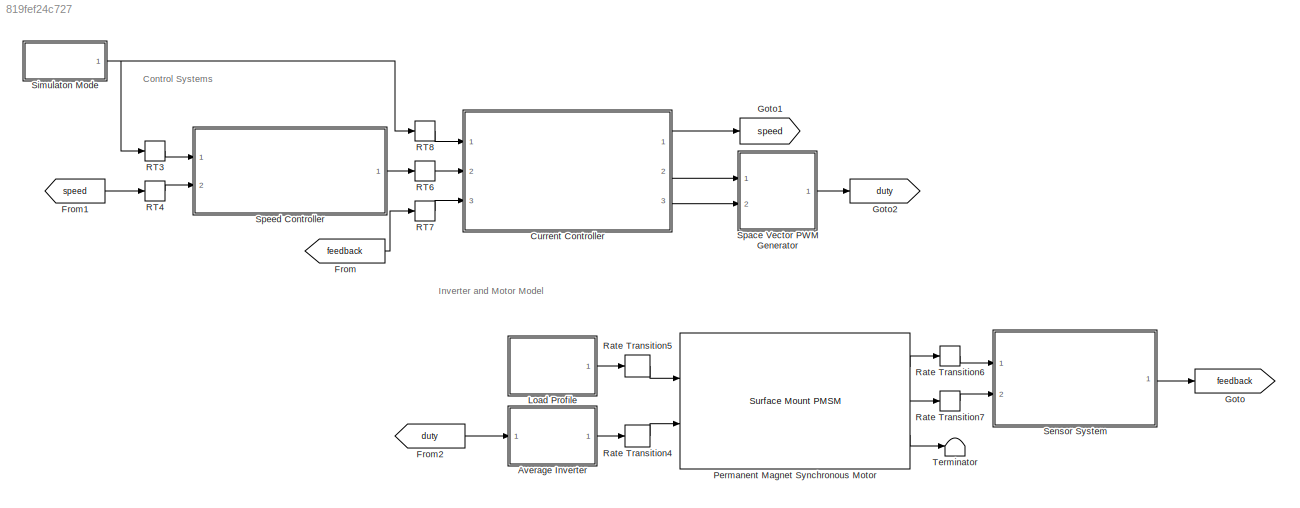
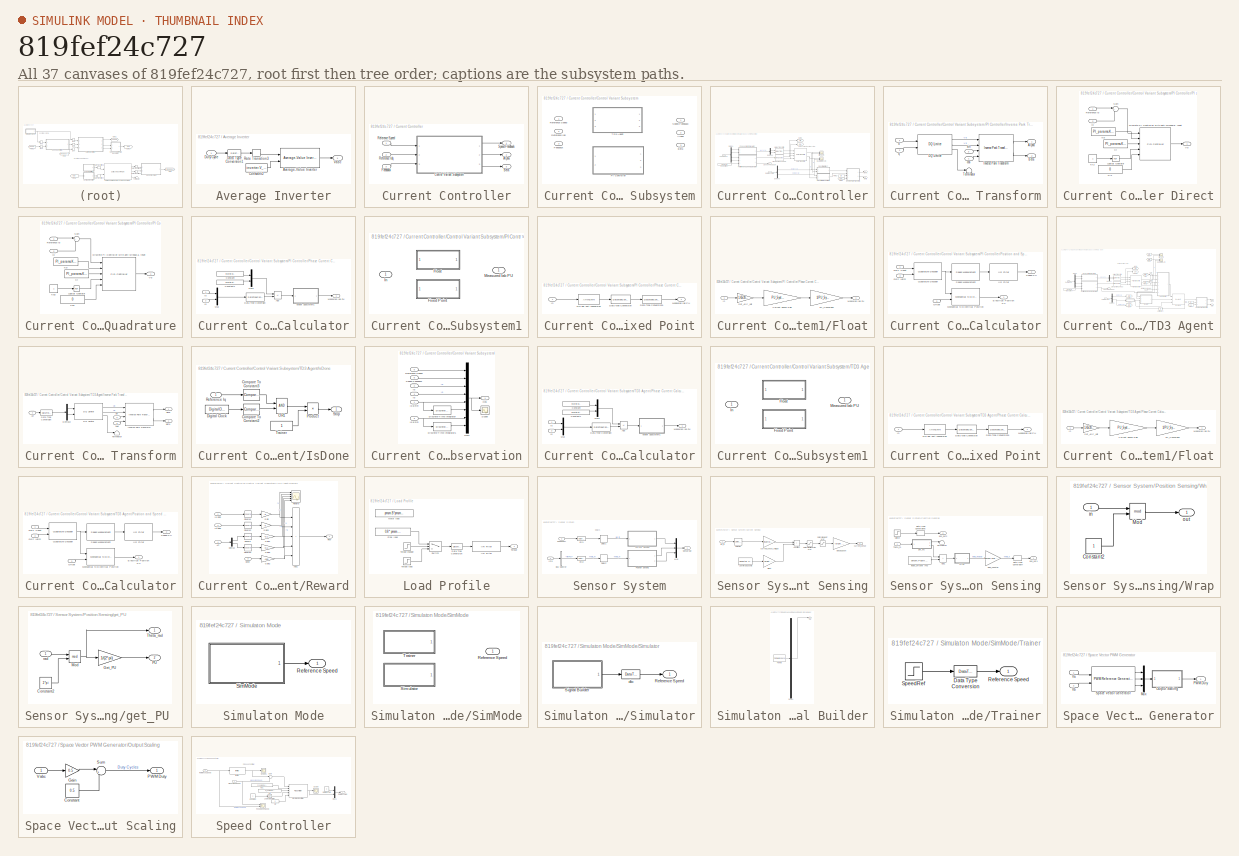
[diagram: thumbnail index - all 37 canvases of the model, root first then tree order]
MODEL slx_819fef24c727
KIND model
CONFIG AbsTol = auto
CONFIG EnableMultiTasking = off
CONFIG FixedStep = auto
CONFIG InitFcn = data;\nControllerVariant = 'RL';\nload('rlAgent.mat');\ndoTraining = false;
CONFIG MaxStep = auto
CONFIG MinStep = auto
CONFIG RelTol = 1e-3
CONFIG SampleTimeConstraint = Unconstrained
CONFIG SolverName = VariableStepAuto
CONFIG StartTime = 0.0
CONFIG StopTime = 10
BLOCK [SubSystem] Average Inverter
  Ports = [1, 1]
  RequestExecContextInheritance = off
BLOCK [Reference] Average Inverter/Average-Value Inverter  REF=mcbplantlib/Average-Value Inverter
  Ports = [2, 1]
  SourceBlock = mcbplantlib/Average-Value Inverter
  SourceProductBaseCode = MT
  SourceType = Average Value Inverter
BLOCK [Constant] Average Inverter/Constant2
  OutDataTypeStr = single
  SampleTime = -1
  Value = inverter.V_dc
BLOCK [DataTypeConversion] Average Inverter/Data Type Conversion1
  OutDataTypeStr = single
  RndMeth = Simplest
  SaturateOnIntegerOverflow = off
BLOCK [Inport] Average Inverter/Duty Cycle
BLOCK [RateTransition] Average Inverter/Rate Transition3
  Deterministic = off
  Integrity = off
  OutPortSampleTime = Ts_inverter
BLOCK [Outport] Average Inverter/Vabc
BLOCK [SubSystem] Current Controller
  OpenFcn = open_system(gcb,'mask');
  Ports = [3, 3]
  RTWSystemCode = Reusable function
  RequestExecContextInheritance = off
  TreatAsAtomicUnit = on
BLOCK [Outport] Current Controller/Alpha
  Port = 2
BLOCK [Outport] Current Controller/Beta
  Port = 3
BLOCK [SubSystem] Current Controller/Control Variant Subsystem
  LabelModeActiveChoice = RL
  Ports = [3, 3]
  RequestExecContextInheritance = off
  Variant = on
  VariantControlMode = label
BLOCK [Outport] Current Controller/Control Variant Subsystem/Alpha
  Port = 2
BLOCK [Outport] Current Controller/Control Variant Subsystem/Beta
  Port = 3
BLOCK [Inport] Current Controller/Control Variant Subsystem/Feedback
  Port = 3
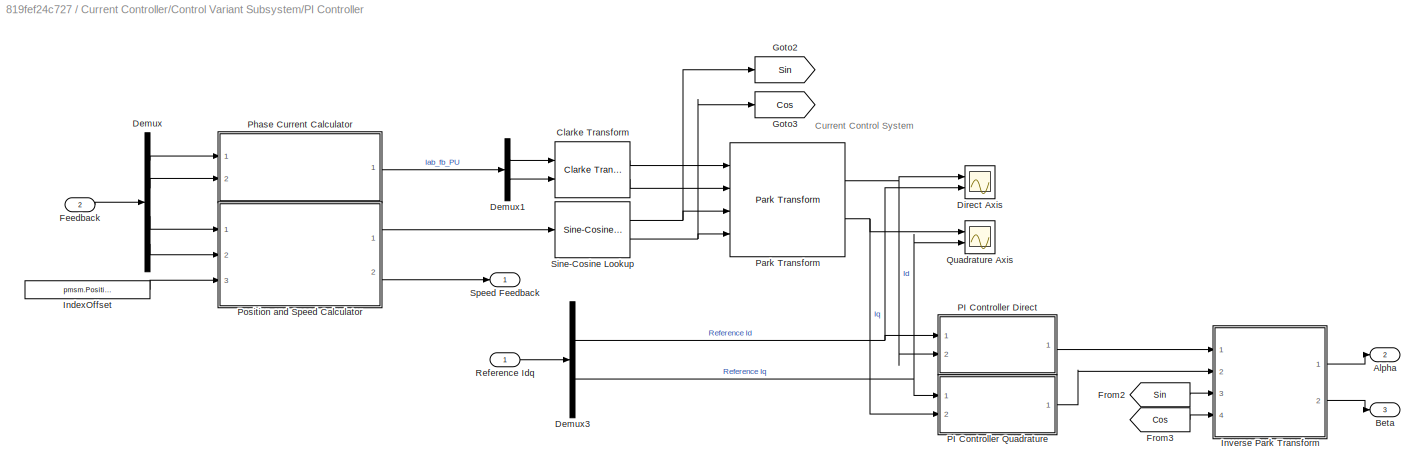
BLOCK [SubSystem] Current Controller/Control Variant Subsystem/PI Controller
  Ports = [2, 3]
  RequestExecContextInheritance = off
  VariantControl = PI
BLOCK [Outport] Current Controller/Control Variant Subsystem/PI Controller/Alpha
  Port = 2
BLOCK [Outport] Current Controller/Control Variant Subsystem/PI Controller/Beta
  Port = 3
BLOCK [Reference] Current Controller/Control Variant Subsystem/PI Controller/Clarke Transform  REF=mcbcontrolslib/Clarke Transform
  NameLocation = top
  Ports = [2, 2]
  SourceBlock = mcbcontrolslib/Clarke Transform
  SourceProductBaseCode = MT
  SourceType = Clarke Transform
BLOCK [Demux] Current Controller/Control Variant Subsystem/PI Controller/Demux
  Ports = [1, 4]
BLOCK [Demux] Current Controller/Control Variant Subsystem/PI Controller/Demux1
  Outputs = 2
  Ports = [1, 2]
BLOCK [Demux] Current Controller/Control Variant Subsystem/PI Controller/Demux3
  Outputs = 2
  Ports = [1, 2]
BLOCK [Scope] Current Controller/Control Variant Subsystem/PI Controller/Direct Axis
  Floating = off
  NumInputPorts = 2
  Ports = [2]
  ScopeSpecificationString = Simulink.scopes.TimeScopeBlockCfg('CurrentConfiguration', extmgr.ConfigurationSet(extmgr.Configuration('Core','General UI',true),extmgr.Configuration('Core','Source UI',true),extmgr.Configuration('Sources','WiredSimulink',true,'DataLoggingVariableName','ScopeData2'),extmgr.Configuration('Visuals','Time Domain',true,'SerializedDisplays',{struct('MinYLimReal','-0.1266','MaxYLimReal','0.13029','YLabe...<+1728ch>
BLOCK [Inport] Current Controller/Control Variant Subsystem/PI Controller/Feedback
  Port = 2
BLOCK [From] Current Controller/Control Variant Subsystem/PI Controller/From2
  GotoTag = Sin
BLOCK [From] Current Controller/Control Variant Subsystem/PI Controller/From3
  GotoTag = Cos
BLOCK [Goto] Current Controller/Control Variant Subsystem/PI Controller/Goto2
  GotoTag = Sin
BLOCK [Goto] Current Controller/Control Variant Subsystem/PI Controller/Goto3
  GotoTag = Cos
BLOCK [Constant] Current Controller/Control Variant Subsystem/PI Controller/IndexOffset
  OutDataTypeStr = dataType
  SampleTime = -1
  Value = pmsm.PositionOffset
BLOCK [SubSystem] Current Controller/Control Variant Subsystem/PI Controller/Inverse Park Transform
  Ports = [4, 2]
  RequestExecContextInheritance = off
BLOCK [Outport] Current Controller/Control Variant Subsystem/PI Controller/Inverse Park Transform/Alpha
BLOCK [Outport] Current Controller/Control Variant Subsystem/PI Controller/Inverse Park Transform/Beta
  Port = 2
BLOCK [Reference] Current Controller/Control Variant Subsystem/PI Controller/Inverse Park Transform/DQ Limiter  REF=mcbcontrolslib/DQ Limiter
  Ports = [2, 3]
  SourceBlock = mcbcontrolslib/DQ Limiter
  SourceProductBaseCode = MT
  SourceType = DQ Limiter
BLOCK [Reference] Current Controller/Control Variant Subsystem/PI Controller/Inverse Park Transform/Inverse Park Transform  REF=mcbcontrolslib/Inverse Park Transform
  Ports = [4, 2]
  SourceBlock = mcbcontrolslib/Inverse Park Transform
  SourceProductBaseCode = MT
  SourceType = Inverse Park Transform
BLOCK [Terminator] Current Controller/Control Variant Subsystem/PI Controller/Inverse Park Transform/Terminator
BLOCK [Inport] Current Controller/Control Variant Subsystem/PI Controller/Inverse Park Transform/cos
  Port = 4
BLOCK [Inport] Current Controller/Control Variant Subsystem/PI Controller/Inverse Park Transform/d
BLOCK [Inport] Current Controller/Control Variant Subsystem/PI Controller/Inverse Park Transform/q
  Port = 2
BLOCK [Inport] Current Controller/Control Variant Subsystem/PI Controller/Inverse Park Transform/sin
  NameLocation = top
  Port = 3
BLOCK [SubSystem] Current Controller/Control Variant Subsystem/PI Controller/PI Controller Direct
  NameLocation = top
  Ports = [2, 1]
  RequestExecContextInheritance = off
BLOCK [Reference] Current Controller/Control Variant Subsystem/PI Controller/PI Controller Direct/Discrete PI Controller with anti-windup & reset  REF=slpidlib/PID Controller
  Ports = [5, 1]
  SourceBlock = slpidlib/PID Controller
  SourceProductBaseCode = SL
  SourceType = PID 1dof
BLOCK [Inport] Current Controller/Control Variant Subsystem/PI Controller/PI Controller Direct/Id
  Port = 2
BLOCK [Constant] Current Controller/Control Variant Subsystem/PI Controller/PI Controller Direct/Ki
  OutDataTypeStr = dataType
  SampleTime = -1
  Value = PI_params.Ki_i*Ts
BLOCK [Constant] Current Controller/Control Variant Subsystem/PI Controller/PI Controller Direct/Ki1
  NameLocation = top
  OutDataTypeStr = dataType
  SampleTime = -1
  Value = 0
BLOCK [Constant] Current Controller/Control Variant Subsystem/PI Controller/PI Controller Direct/Ki2
  NameLocation = top
  OutDataTypeStr = boolean
  SampleTime = -1
BLOCK [Constant] Current Controller/Control Variant Subsystem/PI Controller/PI Controller Direct/Kp
  NameLocation = top
  OutDataTypeStr = dataType
  SampleTime = -1
  Value = PI_params.Kp_i
BLOCK [Logic] Current Controller/Control Variant Subsystem/PI Controller/PI Controller Direct/Logical Operator
  AllPortsSameDT = off
  IconShape = distinctive
  Operator = NOT
  OutDataTypeStr = boolean
  Ports = [1, 1]
BLOCK [Inport] Current Controller/Control Variant Subsystem/PI Controller/PI Controller Direct/Reference Id
BLOCK [Sum] Current Controller/Control Variant Subsystem/PI Controller/PI Controller Direct/Sum
  AccumDataTypeStr = Inherit: Same as first input
  Inputs = |+-
  NameLocation = top
  OutDataTypeStr = Inherit: Same as first input
  Ports = [2, 1]
BLOCK [Outport] Current Controller/Control Variant Subsystem/PI Controller/PI Controller Direct/Vd
  VectorParamsAs1DForOutWhenUnconnected = off
BLOCK [SubSystem] Current Controller/Control Variant Subsystem/PI Controller/PI Controller Quadrature
  Ports = [2, 1]
  RequestExecContextInheritance = off
BLOCK [Reference] Current Controller/Control Variant Subsystem/PI Controller/PI Controller Quadrature/Discrete PI Controller with anti-windup & reset  REF=slpidlib/PID Controller
  Ports = [5, 1]
  SourceBlock = slpidlib/PID Controller
  SourceProductBaseCode = SL
  SourceType = PID 1dof
BLOCK [Inport] Current Controller/Control Variant Subsystem/PI Controller/PI Controller Quadrature/Iq
  Port = 2
BLOCK [Constant] Current Controller/Control Variant Subsystem/PI Controller/PI Controller Quadrature/Ki
  OutDataTypeStr = dataType
  SampleTime = -1
  Value = PI_params.Ki_i*Ts
BLOCK [Constant] Current Controller/Control Variant Subsystem/PI Controller/PI Controller Quadrature/Kp
  NameLocation = top
  OutDataTypeStr = dataType
  SampleTime = -1
  Value = PI_params.Kp_i
BLOCK [Constant] Current Controller/Control Variant Subsystem/PI Controller/PI Controller Quadrature/Kp1
  NameLocation = top
  OutDataTypeStr = dataType
  SampleTime = -1
  Value = 0
BLOCK [Constant] Current Controller/Control Variant Subsystem/PI Controller/PI Controller Quadrature/Kp2
  NameLocation = top
  OutDataTypeStr = boolean
  SampleTime = -1
BLOCK [Logic] Current Controller/Control Variant Subsystem/PI Controller/PI Controller Quadrature/Logical Operator
  AllPortsSameDT = off
  IconShape = distinctive
  Operator = NOT
  OutDataTypeStr = boolean
  Ports = [1, 1]
BLOCK [Inport] Current Controller/Control Variant Subsystem/PI Controller/PI Controller Quadrature/Reference Iq
BLOCK [Sum] Current Controller/Control Variant Subsystem/PI Controller/PI Controller Quadrature/Sum
  AccumDataTypeStr = Inherit: Same as first input
  Inputs = |+-
  OutDataTypeStr = Inherit: Same as first input
  Ports = [2, 1]
BLOCK [Outport] Current Controller/Control Variant Subsystem/PI Controller/PI Controller Quadrature/Vq
  VectorParamsAs1DForOutWhenUnconnected = off
BLOCK [Reference] Current Controller/Control Variant Subsystem/PI Controller/Park Transform  REF=mcbcontrolslib/Park Transform
  Ports = [4, 2]
  SourceBlock = mcbcontrolslib/Park Transform
  SourceProductBaseCode = MT
  SourceType = Park Transform
BLOCK [SubSystem] Current Controller/Control Variant Subsystem/PI Controller/Phase Current Calculator
  NameLocation = top
  Ports = [2, 1]
  RequestExecContextInheritance = off
BLOCK [Sum] Current Controller/Control Variant Subsystem/PI Controller/Phase Current Calculator/Add
  IconShape = rectangular
  Inputs = -+
  Ports = [2, 1]
BLOCK [Constant] Current Controller/Control Variant Subsystem/PI Controller/Phase Current Calculator/Constant
  OutDataTypeStr = uint16
  Value = inverter.CtSensAOffset
BLOCK [Constant] Current Controller/Control Variant Subsystem/PI Controller/Phase Current Calculator/Constant1
  OutDataTypeStr = uint16
  Value = inverter.CtSensBOffset
BLOCK [DataTypeConversion] Current Controller/Control Variant Subsystem/PI Controller/Phase Current Calculator/Data Type Conversion
  ConvertRealWorld = Stored Integer (SI)
  OutDataTypeStr = int32
  RndMeth = Simplest
  SaturateOnIntegerOverflow = off
BLOCK [Inport] Current Controller/Control Variant Subsystem/PI Controller/Phase Current Calculator/Ia
BLOCK [Inport] Current Controller/Control Variant Subsystem/PI Controller/Phase Current Calculator/Ib
  Port = 2
BLOCK [Outport] Current Controller/Control Variant Subsystem/PI Controller/Phase Current Calculator/Measured Iab PU
  VectorParamsAs1DForOutWhenUnconnected = off
BLOCK [Mux] Current Controller/Control Variant Subsystem/PI Controller/Phase Current Calculator/Mux
  DisplayOption = bar
  Inputs = 2
  Ports = [2, 1]
BLOCK [Mux] Current Controller/Control Variant Subsystem/PI Controller/Phase Current Calculator/Mux1
  DisplayOption = bar
  Inputs = 2
  Ports = [2, 1]
BLOCK [SubSystem] Current Controller/Control Variant Subsystem/PI Controller/Phase Current Calculator/Variant Subsystem1
  Ports = [1, 1]
  RequestExecContextInheritance = off
  Variant = on
BLOCK [SubSystem] Current Controller/Control Variant Subsystem/PI Controller/Phase Current Calculator/Variant Subsystem1/Fixed Point
  Ports = [1, 1]
  RequestExecContextInheritance = off
  VariantControl = ~isequal(dataType,'single')
BLOCK [DataTypeConversion] Current Controller/Control Variant Subsystem/PI Controller/Phase Current Calculator/Variant Subsystem1/Fixed Point/Data Type Conversion
  ConvertRealWorld = Stored Integer (SI)
  OutDataTypeStr = fixdt(1,32,17)
  RndMeth = Simplest
  SaturateOnIntegerOverflow = off
BLOCK [DataTypeConversion] Current Controller/Control Variant Subsystem/PI Controller/Phase Current Calculator/Variant Subsystem1/Fixed Point/Data Type Conversion1
  OutDataTypeStr = dataType
  RndMeth = Simplest
  SaturateOnIntegerOverflow = off
BLOCK [Inport] Current Controller/Control Variant Subsystem/PI Controller/Phase Current Calculator/Variant Subsystem1/Fixed Point/In
BLOCK [Outport] Current Controller/Control Variant Subsystem/PI Controller/Phase Current Calculator/Variant Subsystem1/Fixed Point/Measured Iab PU
BLOCK [ArithShift] Current Controller/Control Variant Subsystem/PI Controller/Phase Current Calculator/Variant Subsystem1/Fixed Point/Q17 per unit conversion
  BitShiftNumber = -6
  InputPortMap = u0
  Ports = [1, 1]
BLOCK [SubSystem] Current Controller/Control Variant Subsystem/PI Controller/Phase Current Calculator/Variant Subsystem1/Float
  Ports = [1, 1]
  RequestExecContextInheritance = off
  VariantControl = isequal(dataType,'single')
BLOCK [Gain] Current Controller/Control Variant Subsystem/PI Controller/Phase Current Calculator/Variant Subsystem1/Float/Current Sense Gain
  Gain = PU_System.I_base/1.65
  OutDataTypeStr = Inherit: Same as input
  RndMeth = Simplest
BLOCK [Gain] Current Controller/Control Variant Subsystem/PI Controller/Phase Current Calculator/Variant Subsystem1/Float/Get_ADC_Volt
  Gain = 1.65/2048
  OutDataTypeStr = dataType
  RndMeth = Simplest
BLOCK [Inport] Current Controller/Control Variant Subsystem/PI Controller/Phase Current Calculator/Variant Subsystem1/Float/In
BLOCK [Outport] Current Controller/Control Variant Subsystem/PI Controller/Phase Current Calculator/Variant Subsystem1/Float/Measured Iab PU
BLOCK [Gain] Current Controller/Control Variant Subsystem/PI Controller/Phase Current Calculator/Variant Subsystem1/Float/PU_Conversion
  Gain = 1/PU_System.I_base
  OutDataTypeStr = Inherit: Same as input
  RndMeth = Simplest
BLOCK [Inport] Current Controller/Control Variant Subsystem/PI Controller/Phase Current Calculator/Variant Subsystem1/In
BLOCK [Outport] Current Controller/Control Variant Subsystem/PI Controller/Phase Current Calculator/Variant Subsystem1/Measured Iab PU
BLOCK [SubSystem] Current Controller/Control Variant Subsystem/PI Controller/Position and Speed Calculator
  Ports = [3, 2]
  RequestExecContextInheritance = off
BLOCK [Outport] Current Controller/Control Variant Subsystem/PI Controller/Position and Speed Calculator/Electrical Position PU
  VectorParamsAs1DForOutWhenUnconnected = off
BLOCK [Reference] Current Controller/Control Variant Subsystem/PI Controller/Position and Speed Calculator/IIR Filter  REF=mcbcontrolslib/IIR Filter
  Ports = [1, 1]
  SourceBlock = mcbcontrolslib/IIR Filter
  SourceProductBaseCode = MT
  SourceType = IIR Filter
BLOCK [Reference] Current Controller/Control Variant Subsystem/PI Controller/Position and Speed Calculator/Mechanical to Electrical Position  REF=mcbpositiondecoderlib/Mechanical to Electrical Position
  Ports = [2, 1]
  SourceBlock = mcbpositiondecoderlib/Mechanical to Electrical Position
  SourceProductBaseCode = MT
  SourceType = Mechanical to Electrical Position
BLOCK [Inport] Current Controller/Control Variant Subsystem/PI Controller/Position and Speed Calculator/Offset
  Port = 3
BLOCK [Inport] Current Controller/Control Variant Subsystem/PI Controller/Position and Speed Calculator/QEP Count
BLOCK [Inport] Current Controller/Control Variant Subsystem/PI Controller/Position and Speed Calculator/QEP Latch
  Port = 2
BLOCK [Reference] Current Controller/Control Variant Subsystem/PI Controller/Position and Speed Calculator/Quadrature Decoder  REF=mcbpositiondecoderlib/Quadrature Decoder
  Ports = [2, 1]
  SourceBlock = mcbpositiondecoderlib/Quadrature Decoder
  SourceProductBaseCode = MT
  SourceType = Quadrature Decoder
BLOCK [Reference] Current Controller/Control Variant Subsystem/PI Controller/Position and Speed Calculator/Speed Measurement  REF=mcbpositiondecoderlib/Speed Measurement
  Ports = [1, 1]
  SourceBlock = mcbpositiondecoderlib/Speed Measurement
  SourceProductBaseCode = MT
  SourceType = Speed Measurement
BLOCK [Outport] Current Controller/Control Variant Subsystem/PI Controller/Position and Speed Calculator/Speed PU
  Port = 2
  VectorParamsAs1DForOutWhenUnconnected = off
BLOCK [Scope] Current Controller/Control Variant Subsystem/PI Controller/Quadrature Axis
  Floating = off
  NumInputPorts = 2
  Ports = [2]
  ScopeSpecificationString = Simulink.scopes.TimeScopeBlockCfg('CurrentConfiguration', extmgr.ConfigurationSet(extmgr.Configuration('Core','General UI',true),extmgr.Configuration('Core','Source UI',true),extmgr.Configuration('Sources','WiredSimulink',true,'DataLoggingVariableName','ScopeData3'),extmgr.Configuration('Visuals','Time Domain',true,'SerializedDisplays',{struct('MinYLimReal','-1','MaxYLimReal','1','YLabelReal','','...<+1704ch>
BLOCK [Inport] Current Controller/Control Variant Subsystem/PI Controller/Reference Idq
BLOCK [Reference] Current Controller/Control Variant Subsystem/PI Controller/Sine-Cosine Lookup  REF=mcbcontrolslib/Sine-Cosine Lookup
  Ports = [1, 2]
  SourceBlock = mcbcontrolslib/Sine-Cosine Lookup
  SourceProductBaseCode = MT
  SourceType = Sine-Cosine Lookup
BLOCK [Outport] Current Controller/Control Variant Subsystem/PI Controller/Speed Feedback
  InitialOutput = 0
  VectorParamsAs1DForOutWhenUnconnected = off
BLOCK [Inport] Current Controller/Control Variant Subsystem/Reference Idq
  Port = 2
BLOCK [Inport] Current Controller/Control Variant Subsystem/Reference Speed
BLOCK [Outport] Current Controller/Control Variant Subsystem/Speed Feedback
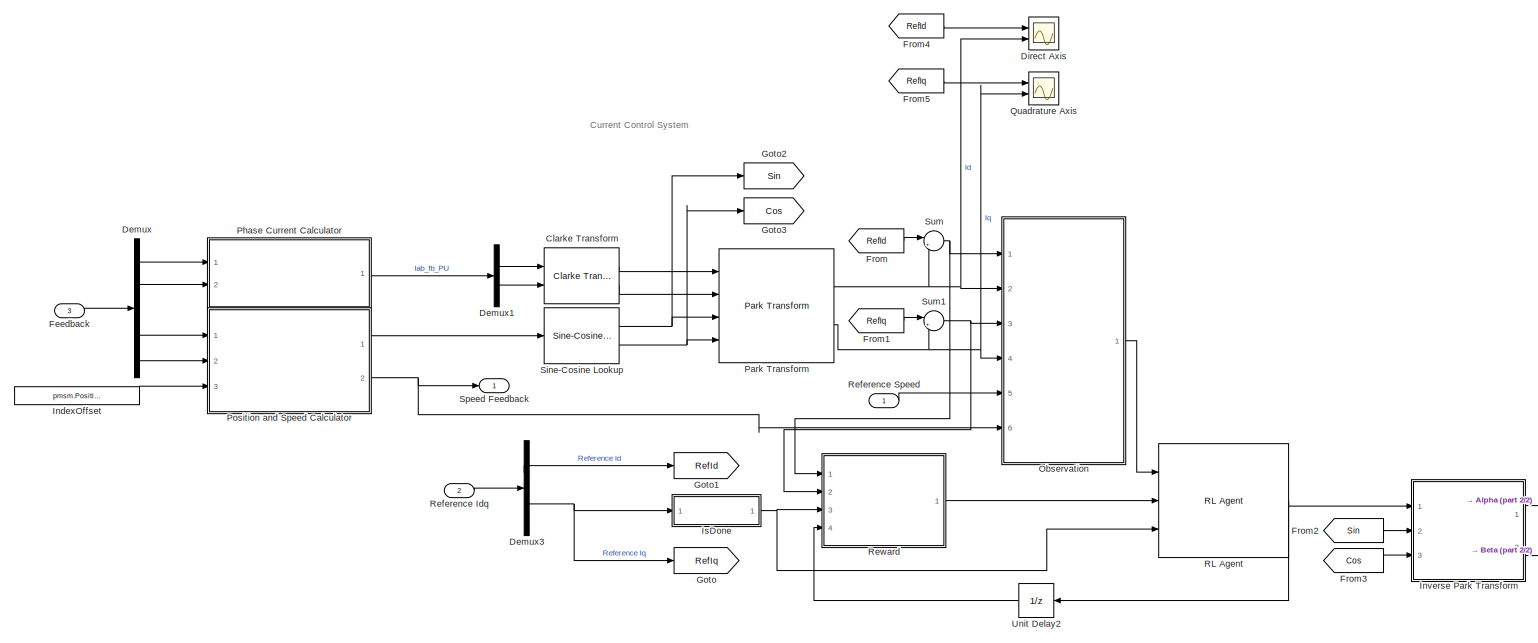
[diagram: Current Controller/Control Variant Subsystem/TD3 Agent - part 1/2, most of the canvas]
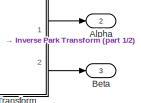
[diagram: Current Controller/Control Variant Subsystem/TD3 Agent - part 2/2, bottom right region]
BLOCK [SubSystem] Current Controller/Control Variant Subsystem/TD3 Agent
  Ports = [3, 3]
  RequestExecContextInheritance = off
  VariantControl = RL
BLOCK [Outport] Current Controller/Control Variant Subsystem/TD3 Agent/Alpha
  Port = 2
BLOCK [Outport] Current Controller/Control Variant Subsystem/TD3 Agent/Beta
  Port = 3
BLOCK [Reference] Current Controller/Control Variant Subsystem/TD3 Agent/Clarke Transform  REF=mcbcontrolslib/Clarke Transform
  NameLocation = top
  Ports = [2, 2]
  SourceBlock = mcbcontrolslib/Clarke Transform
  SourceProductBaseCode = MT
  SourceType = Clarke Transform
BLOCK [Demux] Current Controller/Control Variant Subsystem/TD3 Agent/Demux
  Ports = [1, 4]
BLOCK [Demux] Current Controller/Control Variant Subsystem/TD3 Agent/Demux1
  Outputs = 2
  Ports = [1, 2]
BLOCK [Demux] Current Controller/Control Variant Subsystem/TD3 Agent/Demux3
  Outputs = 2
  Ports = [1, 2]
BLOCK [Scope] Current Controller/Control Variant Subsystem/TD3 Agent/Direct Axis
  Floating = off
  NumInputPorts = 2
  Ports = [2]
  ScopeSpecificationString = Simulink.scopes.TimeScopeBlockCfg('CurrentConfiguration', extmgr.ConfigurationSet(extmgr.Configuration('Core','General UI',true),extmgr.Configuration('Core','Source UI',true),extmgr.Configuration('Sources','WiredSimulink',true,'DataLoggingVariableName','ScopeData1'),extmgr.Configuration('Visuals','Time Domain',true,'SerializedDisplays',{struct('MinYLimReal','-1','MaxYLimReal','1','YLabelReal','','...<+1691ch>
BLOCK [Inport] Current Controller/Control Variant Subsystem/TD3 Agent/Feedback
  Port = 3
BLOCK [From] Current Controller/Control Variant Subsystem/TD3 Agent/From
  GotoTag = RefId
BLOCK [From] Current Controller/Control Variant Subsystem/TD3 Agent/From1
  GotoTag = RefIq
BLOCK [From] Current Controller/Control Variant Subsystem/TD3 Agent/From2
  GotoTag = Sin
BLOCK [From] Current Controller/Control Variant Subsystem/TD3 Agent/From3
  GotoTag = Cos
BLOCK [From] Current Controller/Control Variant Subsystem/TD3 Agent/From4
  GotoTag = RefId
BLOCK [From] Current Controller/Control Variant Subsystem/TD3 Agent/From5
  GotoTag = RefIq
BLOCK [Goto] Current Controller/Control Variant Subsystem/TD3 Agent/Goto
  GotoTag = RefIq
BLOCK [Goto] Current Controller/Control Variant Subsystem/TD3 Agent/Goto1
  GotoTag = RefId
BLOCK [Goto] Current Controller/Control Variant Subsystem/TD3 Agent/Goto2
  GotoTag = Sin
BLOCK [Goto] Current Controller/Control Variant Subsystem/TD3 Agent/Goto3
  GotoTag = Cos
BLOCK [Constant] Current Controller/Control Variant Subsystem/TD3 Agent/IndexOffset
  OutDataTypeStr = dataType
  SampleTime = -1
  Value = pmsm.PositionOffset
BLOCK [SubSystem] Current Controller/Control Variant Subsystem/TD3 Agent/Inverse Park Transform
  Ports = [3, 2]
  RequestExecContextInheritance = off
BLOCK [Inport] Current Controller/Control Variant Subsystem/TD3 Agent/Inverse Park Transform/Act
BLOCK [Outport] Current Controller/Control Variant Subsystem/TD3 Agent/Inverse Park Transform/Alpha
BLOCK [Outport] Current Controller/Control Variant Subsystem/TD3 Agent/Inverse Park Transform/Beta
  Port = 2
BLOCK [Reference] Current Controller/Control Variant Subsystem/TD3 Agent/Inverse Park Transform/DQ Limiter  REF=mcbcontrolslib/DQ Limiter
  Ports = [2, 3]
  SourceBlock = mcbcontrolslib/DQ Limiter
  SourceProductBaseCode = MT
  SourceType = DQ Limiter
BLOCK [DataTypeConversion] Current Controller/Control Variant Subsystem/TD3 Agent/Inverse Park Transform/Data Type Conversion
  OutDataTypeStr = dataType
  RndMeth = Floor
  SaturateOnIntegerOverflow = off
BLOCK [Demux] Current Controller/Control Variant Subsystem/TD3 Agent/Inverse Park Transform/Demux2
  Outputs = 2
  Ports = [1, 2]
BLOCK [Reference] Current Controller/Control Variant Subsystem/TD3 Agent/Inverse Park Transform/Inverse Park Transform  REF=mcbcontrolslib/Inverse Park Transform
  Ports = [4, 2]
  SourceBlock = mcbcontrolslib/Inverse Park Transform
  SourceProductBaseCode = MT
  SourceType = Inverse Park Transform
BLOCK [Terminator] Current Controller/Control Variant Subsystem/TD3 Agent/Inverse Park Transform/Terminator
BLOCK [Inport] Current Controller/Control Variant Subsystem/TD3 Agent/Inverse Park Transform/cos
  Port = 3
BLOCK [Inport] Current Controller/Control Variant Subsystem/TD3 Agent/Inverse Park Transform/sin
  NameLocation = top
  Port = 2
BLOCK [SubSystem] Current Controller/Control Variant Subsystem/TD3 Agent/IsDone
  Ports = [1, 1]
  RequestExecContextInheritance = off
BLOCK [Reference] Current Controller/Control Variant Subsystem/TD3 Agent/IsDone/Compare To Constant2  REF=simulink/Logic and Bit
Operations/Compare
To Constant
  Ports = [1, 1]
  SourceBlock = simulink/Logic and Bit\nOperations/Compare\nTo Constant
  SourceProductBaseCode = SL
  SourceType = Compare To Constant
BLOCK [Reference] Current Controller/Control Variant Subsystem/TD3 Agent/IsDone/Compare To Constant3  REF=simulink/Logic and Bit
Operations/Compare
To Constant
  Ports = [1, 1]
  SourceBlock = simulink/Logic and Bit\nOperations/Compare\nTo Constant
  SourceProductBaseCode = SL
  SourceType = Compare To Constant
BLOCK [DigitalClock] Current Controller/Control Variant Subsystem/TD3 Agent/IsDone/Digital Clock
  SampleTime = Ts
BLOCK [Logic] Current Controller/Control Variant Subsystem/TD3 Agent/IsDone/OR1
  AllPortsSameDT = off
  IconShape = distinctive
  OutDataTypeStr = boolean
  Ports = [2, 1]
BLOCK [Product] Current Controller/Control Variant Subsystem/TD3 Agent/IsDone/Product
  Ports = [2, 1]
BLOCK [Inport] Current Controller/Control Variant Subsystem/TD3 Agent/IsDone/Reference Iq
BLOCK [Outport] Current Controller/Control Variant Subsystem/TD3 Agent/IsDone/Stop
BLOCK [Constant] Current Controller/Control Variant Subsystem/TD3 Agent/IsDone/Trainer
  OutDataTypeStr = double
BLOCK [SubSystem] Current Controller/Control Variant Subsystem/TD3 Agent/Observation
  Ports = [6, 1]
  RequestExecContextInheritance = off
BLOCK [DiscreteIntegrator] Current Controller/Control Variant Subsystem/TD3 Agent/Observation/Discrete-Time Integrator
  ICPrevOutput = DiscIntNeverNeededParam
  ICPrevScaledInput = DiscIntNeverNeededParam
  InitialConditionSetting = Auto
  LimitOutput = on
  LowerSaturationLimit = 0
  Ports = [1, 1]
  SampleTime = -1
  UpperSaturationLimit = 0.05
BLOCK [DiscreteIntegrator] Current Controller/Control Variant Subsystem/TD3 Agent/Observation/Discrete-Time Integrator1
  ICPrevOutput = DiscIntNeverNeededParam
  ICPrevScaledInput = DiscIntNeverNeededParam
  InitialConditionSetting = Auto
  LimitOutput = on
  LowerSaturationLimit = 0
  Ports = [1, 1]
  SampleTime = -1
  UpperSaturationLimit = 0.05
BLOCK [Inport] Current Controller/Control Variant Subsystem/TD3 Agent/Observation/Id
  NameLocation = left
  Port = 2
BLOCK [Inport] Current Controller/Control Variant Subsystem/TD3 Agent/Observation/Id ERR
BLOCK [Inport] Current Controller/Control Variant Subsystem/TD3 Agent/Observation/Iq
  NameLocation = left
  Port = 4
BLOCK [Inport] Current Controller/Control Variant Subsystem/TD3 Agent/Observation/Iq ERR
  Port = 3
BLOCK [Mux] Current Controller/Control Variant Subsystem/TD3 Agent/Observation/Mux1
  DisplayOption = bar
  Inputs = 8
  Ports = [8, 1]
BLOCK [Outport] Current Controller/Control Variant Subsystem/TD3 Agent/Observation/Obs
  VectorParamsAs1DForOutWhenUnconnected = off
BLOCK [Inport] Current Controller/Control Variant Subsystem/TD3 Agent/Observation/Reference Speed
  NameLocation = left
  Port = 5
BLOCK [Scope] Current Controller/Control Variant Subsystem/TD3 Agent/Observation/Scope
  Floating = off
  NumInputPorts = 1
  Ports = [1]
  ScopeSpecificationString = Simulink.scopes.TimeScopeBlockCfg('CurrentConfiguration', extmgr.ConfigurationSet(extmgr.Configuration('Core','General UI',true),extmgr.Configuration('Core','Source UI',true),extmgr.Configuration('Sources','WiredSimulink',true,'DataLoggingVariableName','ScopeData3'),extmgr.Configuration('Visuals','Time Domain',true,'SerializedDisplays',{struct('MinYLimReal','-0.34619','MaxYLimReal','0.94138','YLab...<+1856ch>
BLOCK [Inport] Current Controller/Control Variant Subsystem/TD3 Agent/Observation/Speed Feedback
  NameLocation = left
  Port = 6
BLOCK [Reference] Current Controller/Control Variant Subsystem/TD3 Agent/Park Transform  REF=mcbcontrolslib/Park Transform
  Ports = [4, 2]
  SourceBlock = mcbcontrolslib/Park Transform
  SourceProductBaseCode = MT
  SourceType = Park Transform
BLOCK [SubSystem] Current Controller/Control Variant Subsystem/TD3 Agent/Phase Current Calculator
  NameLocation = top
  Ports = [2, 1]
  RequestExecContextInheritance = off
BLOCK [Sum] Current Controller/Control Variant Subsystem/TD3 Agent/Phase Current Calculator/Add
  IconShape = rectangular
  Inputs = -+
  Ports = [2, 1]
BLOCK [Constant] Current Controller/Control Variant Subsystem/TD3 Agent/Phase Current Calculator/Constant
  OutDataTypeStr = uint16
  Value = inverter.CtSensAOffset
BLOCK [Constant] Current Controller/Control Variant Subsystem/TD3 Agent/Phase Current Calculator/Constant1
  OutDataTypeStr = uint16
  Value = inverter.CtSensBOffset
BLOCK [DataTypeConversion] Current Controller/Control Variant Subsystem/TD3 Agent/Phase Current Calculator/Data Type Conversion
  ConvertRealWorld = Stored Integer (SI)
  OutDataTypeStr = int32
  RndMeth = Simplest
  SaturateOnIntegerOverflow = off
BLOCK [Inport] Current Controller/Control Variant Subsystem/TD3 Agent/Phase Current Calculator/Ia
BLOCK [Inport] Current Controller/Control Variant Subsystem/TD3 Agent/Phase Current Calculator/Ib
  Port = 2
BLOCK [Outport] Current Controller/Control Variant Subsystem/TD3 Agent/Phase Current Calculator/Measured Iab PU
  VectorParamsAs1DForOutWhenUnconnected = off
BLOCK [Mux] Current Controller/Control Variant Subsystem/TD3 Agent/Phase Current Calculator/Mux
  DisplayOption = bar
  Inputs = 2
  Ports = [2, 1]
BLOCK [Mux] Current Controller/Control Variant Subsystem/TD3 Agent/Phase Current Calculator/Mux1
  DisplayOption = bar
  Inputs = 2
  Ports = [2, 1]
BLOCK [SubSystem] Current Controller/Control Variant Subsystem/TD3 Agent/Phase Current Calculator/Variant Subsystem1
  Ports = [1, 1]
  RequestExecContextInheritance = off
  Variant = on
BLOCK [SubSystem] Current Controller/Control Variant Subsystem/TD3 Agent/Phase Current Calculator/Variant Subsystem1/Fixed Point
  Ports = [1, 1]
  RequestExecContextInheritance = off
  VariantControl = ~isequal(dataType,'single')
BLOCK [DataTypeConversion] Current Controller/Control Variant Subsystem/TD3 Agent/Phase Current Calculator/Variant Subsystem1/Fixed Point/Data Type Conversion
  ConvertRealWorld = Stored Integer (SI)
  OutDataTypeStr = fixdt(1,32,17)
  RndMeth = Simplest
  SaturateOnIntegerOverflow = off
BLOCK [DataTypeConversion] Current Controller/Control Variant Subsystem/TD3 Agent/Phase Current Calculator/Variant Subsystem1/Fixed Point/Data Type Conversion1
  OutDataTypeStr = dataType
  RndMeth = Simplest
  SaturateOnIntegerOverflow = off
BLOCK [Inport] Current Controller/Control Variant Subsystem/TD3 Agent/Phase Current Calculator/Variant Subsystem1/Fixed Point/In
BLOCK [Outport] Current Controller/Control Variant Subsystem/TD3 Agent/Phase Current Calculator/Variant Subsystem1/Fixed Point/Measured Iab PU
BLOCK [ArithShift] Current Controller/Control Variant Subsystem/TD3 Agent/Phase Current Calculator/Variant Subsystem1/Fixed Point/Q17 per unit conversion
  BitShiftNumber = -6
  InputPortMap = u0
  Ports = [1, 1]
BLOCK [SubSystem] Current Controller/Control Variant Subsystem/TD3 Agent/Phase Current Calculator/Variant Subsystem1/Float
  Ports = [1, 1]
  RequestExecContextInheritance = off
  VariantControl = isequal(dataType,'single')
BLOCK [Gain] Current Controller/Control Variant Subsystem/TD3 Agent/Phase Current Calculator/Variant Subsystem1/Float/Current Sense Gain
  Gain = PU_System.I_base/1.65
  OutDataTypeStr = Inherit: Same as input
  RndMeth = Simplest
BLOCK [Gain] Current Controller/Control Variant Subsystem/TD3 Agent/Phase Current Calculator/Variant Subsystem1/Float/Get_ADC_Volt
  Gain = 1.65/2048
  OutDataTypeStr = dataType
  RndMeth = Simplest
BLOCK [Inport] Current Controller/Control Variant Subsystem/TD3 Agent/Phase Current Calculator/Variant Subsystem1/Float/In
BLOCK [Outport] Current Controller/Control Variant Subsystem/TD3 Agent/Phase Current Calculator/Variant Subsystem1/Float/Measured Iab PU
BLOCK [Gain] Current Controller/Control Variant Subsystem/TD3 Agent/Phase Current Calculator/Variant Subsystem1/Float/PU_Conversion
  Gain = 1/PU_System.I_base
  OutDataTypeStr = Inherit: Same as input
  RndMeth = Simplest
BLOCK [Inport] Current Controller/Control Variant Subsystem/TD3 Agent/Phase Current Calculator/Variant Subsystem1/In
BLOCK [Outport] Current Controller/Control Variant Subsystem/TD3 Agent/Phase Current Calculator/Variant Subsystem1/Measured Iab PU
BLOCK [SubSystem] Current Controller/Control Variant Subsystem/TD3 Agent/Position and Speed Calculator
  Ports = [3, 2]
  RequestExecContextInheritance = off
BLOCK [Outport] Current Controller/Control Variant Subsystem/TD3 Agent/Position and Speed Calculator/Electrical Position PU
  VectorParamsAs1DForOutWhenUnconnected = off
BLOCK [Reference] Current Controller/Control Variant Subsystem/TD3 Agent/Position and Speed Calculator/IIR Filter  REF=mcbcontrolslib/IIR Filter
  Ports = [1, 1]
  SourceBlock = mcbcontrolslib/IIR Filter
  SourceProductBaseCode = MT
  SourceType = IIR Filter
BLOCK [Reference] Current Controller/Control Variant Subsystem/TD3 Agent/Position and Speed Calculator/Mechanical to Electrical Position  REF=mcbpositiondecoderlib/Mechanical to Electrical Position
  Ports = [2, 1]
  SourceBlock = mcbpositiondecoderlib/Mechanical to Electrical Position
  SourceProductBaseCode = MT
  SourceType = Mechanical to Electrical Position
BLOCK [Inport] Current Controller/Control Variant Subsystem/TD3 Agent/Position and Speed Calculator/Offset
  Port = 3
BLOCK [Inport] Current Controller/Control Variant Subsystem/TD3 Agent/Position and Speed Calculator/QEP Count
BLOCK [Inport] Current Controller/Control Variant Subsystem/TD3 Agent/Position and Speed Calculator/QEP Latch
  Port = 2
BLOCK [Reference] Current Controller/Control Variant Subsystem/TD3 Agent/Position and Speed Calculator/Quadrature Decoder  REF=mcbpositiondecoderlib/Quadrature Decoder
  Ports = [2, 1]
  SourceBlock = mcbpositiondecoderlib/Quadrature Decoder
  SourceProductBaseCode = MT
  SourceType = Quadrature Decoder
BLOCK [Reference] Current Controller/Control Variant Subsystem/TD3 Agent/Position and Speed Calculator/Speed Measurement  REF=mcbpositiondecoderlib/Speed Measurement
  Ports = [1, 1]
  SourceBlock = mcbpositiondecoderlib/Speed Measurement
  SourceProductBaseCode = MT
  SourceType = Speed Measurement
BLOCK [Outport] Current Controller/Control Variant Subsystem/TD3 Agent/Position and Speed Calculator/Speed PU
  Port = 2
  VectorParamsAs1DForOutWhenUnconnected = off
BLOCK [Scope] Current Controller/Control Variant Subsystem/TD3 Agent/Quadrature Axis
  Floating = off
  NumInputPorts = 2
  Ports = [2]
  ScopeSpecificationString = Simulink.scopes.TimeScopeBlockCfg('CurrentConfiguration', extmgr.ConfigurationSet(extmgr.Configuration('Core','General UI',true),extmgr.Configuration('Core','Source UI',true),extmgr.Configuration('Sources','WiredSimulink',true,'DataLoggingVariableName','ScopeData4'),extmgr.Configuration('Visuals','Time Domain',true,'SerializedDisplays',{struct('MinYLimReal','-1','MaxYLimReal','1','YLabelReal','','...<+1691ch>
BLOCK [Reference] Current Controller/Control Variant Subsystem/TD3 Agent/RL Agent  REF=rllib/RL Agent
  Ports = [3, 1]
  SourceBlock = rllib/RL Agent
  SourceProductBaseCode = RL
  SourceType = RL Agent
BLOCK [Inport] Current Controller/Control Variant Subsystem/TD3 Agent/Reference Idq
  Port = 2
BLOCK [Inport] Current Controller/Control Variant Subsystem/TD3 Agent/Reference Speed
  NameLocation = left
BLOCK [SubSystem] Current Controller/Control Variant Subsystem/TD3 Agent/Reward
  Ports = [4, 1]
  RequestExecContextInheritance = off
BLOCK [Inport] Current Controller/Control Variant Subsystem/TD3 Agent/Reward/Act
  Port = 4
BLOCK [Sum] Current Controller/Control Variant Subsystem/TD3 Agent/Reward/Add1
  IconShape = rectangular
  Inputs = +++++
  Ports = [5, 1]
BLOCK [Demux] Current Controller/Control Variant Subsystem/TD3 Agent/Reward/Demux
  Outputs = 2
  Ports = [1, 2]
BLOCK [Inport] Current Controller/Control Variant Subsystem/TD3 Agent/Reward/Done
  Port = 3
BLOCK [Gain] Current Controller/Control Variant Subsystem/TD3 Agent/Reward/Gain
  Gain = -5
BLOCK [Gain] Current Controller/Control Variant Subsystem/TD3 Agent/Reward/Gain1
  Gain = -0.1
BLOCK [Gain] Current Controller/Control Variant Subsystem/TD3 Agent/Reward/Gain2
  Gain = -100
BLOCK [Gain] Current Controller/Control Variant Subsystem/TD3 Agent/Reward/Gain3
  Gain = -5
BLOCK [Gain] Current Controller/Control Variant Subsystem/TD3 Agent/Reward/Gain5
  Gain = -0.1
BLOCK [Inport] Current Controller/Control Variant Subsystem/TD3 Agent/Reward/Id ERR
BLOCK [Inport] Current Controller/Control Variant Subsystem/TD3 Agent/Reward/Iq ERR
  Port = 2
BLOCK [Outport] Current Controller/Control Variant Subsystem/TD3 Agent/Reward/Rew
  VectorParamsAs1DForOutWhenUnconnected = off
BLOCK [Scope] Current Controller/Control Variant Subsystem/TD3 Agent/Reward/Reward
  Floating = off
  NumInputPorts = 5
  Ports = [5]
  ScopeSpecificationString = Simulink.scopes.TimeScopeBlockCfg('CurrentConfiguration', extmgr.ConfigurationSet(extmgr.Configuration('Core','General UI',true),extmgr.Configuration('Core','Source UI',true),extmgr.Configuration('Sources','WiredSimulink',true,'DataLoggingVariableName','ScopeData2'),extmgr.Configuration('Visuals','Time Domain',true,'SerializedDisplays',{struct('MinYLimReal','-0.02467','MaxYLimReal','0.01118','YLab...<+1569ch>
BLOCK [Math] Current Controller/Control Variant Subsystem/TD3 Agent/Reward/Square
  Operator = square
  Ports = [1, 1]
BLOCK [Math] Current Controller/Control Variant Subsystem/TD3 Agent/Reward/Square1
  Operator = square
  Ports = [1, 1]
BLOCK [Math] Current Controller/Control Variant Subsystem/TD3 Agent/Reward/Square2
  Operator = square
  Ports = [1, 1]
BLOCK [Math] Current Controller/Control Variant Subsystem/TD3 Agent/Reward/Square3
  Operator = square
  Ports = [1, 1]
BLOCK [Reference] Current Controller/Control Variant Subsystem/TD3 Agent/Sine-Cosine Lookup  REF=mcbcontrolslib/Sine-Cosine Lookup
  Ports = [1, 2]
  SourceBlock = mcbcontrolslib/Sine-Cosine Lookup
  SourceProductBaseCode = MT
  SourceType = Sine-Cosine Lookup
BLOCK [Outport] Current Controller/Control Variant Subsystem/TD3 Agent/Speed Feedback
  InitialOutput = 0
  VectorParamsAs1DForOutWhenUnconnected = off
BLOCK [Sum] Current Controller/Control Variant Subsystem/TD3 Agent/Sum
  Inputs = |+-
  OutDataTypeStr = Inherit: Inherit via back propagation
  Ports = [2, 1]
BLOCK [Sum] Current Controller/Control Variant Subsystem/TD3 Agent/Sum1
  Inputs = |+-
  OutDataTypeStr = Inherit: Inherit via back propagation
  Ports = [2, 1]
BLOCK [UnitDelay] Current Controller/Control Variant Subsystem/TD3 Agent/Unit Delay2
  HasFrameUpgradeWarning = on
  SampleTime = -1
BLOCK [Inport] Current Controller/Feedback
  Port = 3
BLOCK [Inport] Current Controller/Reference Idq
  Port = 2
BLOCK [Inport] Current Controller/Reference Speed
BLOCK [Outport] Current Controller/Speed Feedback
BLOCK [From] From
  GotoTag = feedback
BLOCK [From] From1
  GotoTag = speed
BLOCK [From] From2
  GotoTag = duty
BLOCK [Goto] Goto
  GotoTag = feedback
BLOCK [Goto] Goto1
  GotoTag = speed
  NameLocation = top
BLOCK [Goto] Goto2
  GotoTag = duty
BLOCK [SubSystem] Load Profile
  NameLocation = top
  Ports = [0, 1]
  RequestExecContextInheritance = off
BLOCK [DataTypeConversion] Load Profile/Data Type Conversion
  OutDataTypeStr = single
  RndMeth = Floor
  SaturateOnIntegerOverflow = off
BLOCK [Constant] Load Profile/Final load
  Value = 0.8 * pmsm.T_rated
BLOCK [Reference] Load Profile/IIR Filter  REF=mcbcontrolslib/IIR Filter
  Ports = [1, 1]
  SourceBlock = mcbcontrolslib/IIR Filter
  SourceProductBaseCode = MT
  SourceType = IIR Filter
BLOCK [Constant] Load Profile/Motor load
  Commented = on
  Value = pmsm.B*pmsm.N_base*2*pi/60
BLOCK [Switch] Load Profile/Switch
  Criteria = u2 > Threshold
  InputSameDT = off
  SaturateOnIntegerOverflow = off
BLOCK [Outport] Load Profile/Torque
BLOCK [Step] Load Profile/Torque change
  SampleTime = Ts_simulink
  Time = 19.5
BLOCK [Step] Load Profile/Torque load
  After = 0.5*pmsm.T_rated
  Before = 0.05*pmsm.T_rated
  SampleTime = Ts_simulink
BLOCK [Reference] Permanent Magnet Synchronous Motor  REF=autolibpmsmexterior/Surface Mount PMSM
  Ports = [2, 3]
  SourceBlock = autolibpmsmexterior/Surface Mount PMSM
  SourceProductBaseCode = PW,DR,MT,VE
  SourceType = Surface Mount PMSM
BLOCK [RateTransition] RT3
  Deterministic = off
  OutPortSampleTime = Ts_speed
BLOCK [RateTransition] RT4
  Deterministic = off
  OutPortSampleTime = Ts_speed
BLOCK [RateTransition] RT6
  Deterministic = off
  OutPortSampleTime = Ts
BLOCK [RateTransition] RT7
  Deterministic = off
  OutPortSampleTime = Ts
BLOCK [RateTransition] RT8
  Deterministic = off
  OutPortSampleTime = Ts
BLOCK [RateTransition] Rate Transition4
  Deterministic = off
  OutPortSampleTime = Ts_motor
BLOCK [RateTransition] Rate Transition5
  Deterministic = off
  OutPortSampleTime = Ts_motor
BLOCK [RateTransition] Rate Transition6
  Deterministic = off
  OutPortSampleTime = Ts_simulink
BLOCK [RateTransition] Rate Transition7
  Deterministic = off
  OutPortSampleTime = Ts_simulink
BLOCK [SubSystem] Sensor System
  Ports = [2, 1]
  RequestExecContextInheritance = off
BLOCK [BusSelector] Sensor System/Bus Selector
  OutputSignals = MtrPos
  Ports = [1, 1]
BLOCK [SubSystem] Sensor System/Current Sensing
  NameLocation = top
  Ports = [1, 1]
  RequestExecContextInheritance = off
BLOCK [Sum] Sensor System/Current Sensing/Add Offset
  IconShape = rectangular
  Ports = [2, 1]
  RndMeth = Simplest
BLOCK [Gain] Sensor System/Current Sensing/Get ADC Count
  Gain = target.ADC_MaxCount/target.ADC_Vref
  OutDataTypeStr = uint16
  OutMax = target.ADC_MaxCount
  OutMin = 0
  RndMeth = Simplest
BLOCK [Inport] Sensor System/Current Sensing/Iab_fb
BLOCK [Saturate] Sensor System/Current Sensing/Saturate at ADC Vref
  LowerLimit = 0
  UpperLimit = target.ADC_Vref
BLOCK [Saturate] Sensor System/Current Sensing/Saturate at inverter Vref
  LowerLimit = 0
  UpperLimit = inverter.ISenseVref
BLOCK [Selector] Sensor System/Current Sensing/Selector
  IndexOptions = Index vector (dialog)
  Indices = [1 2]
  InputPortWidth = 3
  OutputSizes = 1
  Ports = [1, 1]
BLOCK [Outport] Sensor System/Current Sensing/current_sense
BLOCK [Gain] Sensor System/Current Sensing/current_sense_voltage
  Gain = inverter.invertingAmp * inverter.ISenseVoltPerAmp
  OutDataTypeStr = Inherit: Same as input
  RndMeth = Simplest
BLOCK [Gain] Sensor System/Current Sensing/offset
  Gain = target.ADC_Vref / target.ADC_MaxCount
  RndMeth = Simplest
BLOCK [Constant] Sensor System/Current Sensing/~1.65V in ADC counts
  OutDataTypeStr = uint16
  SampleTime = -1
  Value = [inverter.CtSensAOffset inverter.CtSensBOffset]
BLOCK [Delay] Sensor System/Delay1
  DelayLength = PI_params.delay_Currents
  InputPortMap = u0
  Ports = [1, 1]
BLOCK [Delay] Sensor System/Delay2
  DelayLength = PI_params.delay_Position
  InputPortMap = u0
  Ports = [1, 1]
BLOCK [Inport] Sensor System/Info
BLOCK [Mux] Sensor System/Mux
  DisplayOption = bar
  Inputs = 3
  Ports = [3, 1]
BLOCK [Inport] Sensor System/PhaseCurr
  Port = 2
BLOCK [SubSystem] Sensor System/Position Sensing
  Ports = [1, 2]
  RequestExecContextInheritance = off
BLOCK [Sum] Sensor System/Position Sensing/Add1
  IconShape = rectangular
  Ports = [2, 1]
  RndMeth = Simplest
BLOCK [DataTypeConversion] Sensor System/Position Sensing/Data Type Conversion6
  OutDataTypeStr = uint16
  RndMeth = Simplest
  SaturateOnIntegerOverflow = off
BLOCK [DataTypeConversion] Sensor System/Position Sensing/Data Type Conversion7
  OutDataTypeStr = uint16
  RndMeth = Simplest
  SaturateOnIntegerOverflow = off
BLOCK [Terminator] Sensor System/Position Sensing/Terminator
BLOCK [Inport] Sensor System/Position Sensing/Theta_m
BLOCK [SubSystem] Sensor System/Position Sensing/Wrap
  Ports = [1, 1]
  RequestExecContextInheritance = off
BLOCK [Constant] Sensor System/Position Sensing/Wrap/Constant2
  OutDataTypeStr = single
  SampleTime = -1
BLOCK [Math] Sensor System/Position Sensing/Wrap/Mod
  Operator = mod
  Ports = [2, 1]
BLOCK [Inport] Sensor System/Position Sensing/Wrap/in
BLOCK [Outport] Sensor System/Position Sensing/Wrap/out
  VectorParamsAs1DForOutWhenUnconnected = off
BLOCK [SubSystem] Sensor System/Position Sensing/get_PU 
  Ports = [1, 2]
  RequestExecContextInheritance = off
BLOCK [Constant] Sensor System/Position Sensing/get_PU /Constant2
  OutDataTypeStr = single
  SampleTime = -1
  Value = 2*pi
BLOCK [Gain] Sensor System/Position Sensing/get_PU /Get_PU
  Gain = 1/(2*pi)
  OutDataTypeStr = Inherit: Same as input
  RndMeth = Simplest
BLOCK [Math] Sensor System/Position Sensing/get_PU /Mod
  Operator = mod
  Ports = [2, 1]
BLOCK [Outport] Sensor System/Position Sensing/get_PU /PU
  Port = 2
  VectorParamsAs1DForOutWhenUnconnected = off
BLOCK [Outport] Sensor System/Position Sensing/get_PU /Theta_rad
BLOCK [Inport] Sensor System/Position Sensing/get_PU /rad
BLOCK [Constant] Sensor System/Position Sensing/index_offsent (PU)
  OutDataTypeStr = single
  SampleTime = -1
  Value = pmsm.PositionOffset
BLOCK [Outport] Sensor System/Position Sensing/pos_out1
BLOCK [Outport] Sensor System/Position Sensing/pos_out2
  Port = 2
BLOCK [Gain] Sensor System/Position Sensing/qep_counter
  Gain = pmsm.QEPSlits*4
  OutDataTypeStr = uint16
  RndMeth = Simplest
BLOCK [Step] Sensor System/Position Sensing/switch
  SampleTime = Ts_motor
  Time = 0.1
BLOCK [Outport] Sensor System/SensorOut
BLOCK [DataTypeConversion] Sensor System/dtc1
  OutDataTypeStr = single
  RndMeth = Simplest
  SaturateOnIntegerOverflow = off
BLOCK [DataTypeConversion] Sensor System/dtc2
  OutDataTypeStr = single
  RndMeth = Simplest
  SaturateOnIntegerOverflow = off
BLOCK [SubSystem] Simulaton Mode
  OpenFcn = open_system(gcb,'mask');
  Ports = [0, 1]
  RequestExecContextInheritance = off
BLOCK [Outport] Simulaton Mode/Reference Speed
BLOCK [SubSystem] Simulaton Mode/SimMode
  LabelModeActiveChoice = simulate
  Ports = [0, 1]
  RequestExecContextInheritance = off
  Variant = on
  VariantControlMode = label
BLOCK [Outport] Simulaton Mode/SimMode/Reference Speed
BLOCK [SubSystem] Simulaton Mode/SimMode/Simulator
  Ports = [0, 1]
  RequestExecContextInheritance = off
  VariantControl = simulate
BLOCK [Outport] Simulaton Mode/SimMode/Simulator/Reference Speed
BLOCK [SubSystem] Simulaton Mode/SimMode/Simulator/Signal Builder
  ClipboardFcn = sigbuilder_block('clipboard');
  CloseFcn = sigbuilder_block('close');
  ContinueFcn = sigbuilder_block('continue');
  CopyFcn = sigbuilder_block('copy');
  DeleteFcn = sigbuilder_block('delete');
  LoadFcn = sigbuilder_block('load');
  MaskHideContents = on
  ModelCloseFcn = sigbuilder_block('modelClose');
  NameChangeFcn = sigbuilder_block('namechange');
  OpenFcn = sigbuilder_block('open',[437.25 199.5 550.5 399.75 ]);
  PauseFcn = sigbuilder_block('pause');
  Ports = [0, 1]
  PreSaveFcn = sigbuilder_block('preSave');
  RequestExecContextInheritance = off
  StartFcn = sigbuilder_block('start');
  StopFcn = sigbuilder_block('stop');
  Tag = STV Subsys
BLOCK [Demux] Simulaton Mode/SimMode/Simulator/Signal Builder/Demux
  DisplayOption = none
  Outputs = 1
  Ports = [1, 1]
  Tag = STV Demux
BLOCK [FromWorkspace] Simulaton Mode/SimMode/Simulator/Signal Builder/FromWs
  Tag = STV FromWs
  VariableName = tuvar
BLOCK [Outport] Simulaton Mode/SimMode/Simulator/Signal Builder/PU
  Tag = STV Outport
BLOCK [DataTypeConversion] Simulaton Mode/SimMode/Simulator/dtc
  OutDataTypeStr = dataType
  RndMeth = Floor
  SaturateOnIntegerOverflow = off
BLOCK [SubSystem] Simulaton Mode/SimMode/Trainer
  Ports = [0, 1]
  RequestExecContextInheritance = off
  VariantControl = train
BLOCK [DataTypeConversion] Simulaton Mode/SimMode/Trainer/Data Type Conversion
  OutDataTypeStr = dataType
  RndMeth = Floor
  SaturateOnIntegerOverflow = off
BLOCK [Outport] Simulaton Mode/SimMode/Trainer/Reference Speed
BLOCK [Step] Simulaton Mode/SimMode/Trainer/SpeedRef
  After = 0.6
  OutDataTypeStr = single
  SampleTime = Ts_speed
  Time = 0
BLOCK [SubSystem] Space Vector PWM Generator
  Ports = [2, 1]
  RequestExecContextInheritance = off
BLOCK [Mux] Space Vector PWM Generator/Mux
  DisplayOption = bar
  Inputs = 3
  Ports = [3, 1]
BLOCK [SubSystem] Space Vector PWM Generator/Output Scaling
  Ports = [1, 1]
  RequestExecContextInheritance = off
BLOCK [Constant] Space Vector PWM Generator/Output Scaling/Constant
  OutDataTypeStr = dataType
  Value = 0.5
BLOCK [Gain] Space Vector PWM Generator/Output Scaling/Gain
  Gain = 0.5
  OutDataTypeStr = dataType
  RndMeth = Simplest
BLOCK [Outport] Space Vector PWM Generator/Output Scaling/PWM Duty
BLOCK [Sum] Space Vector PWM Generator/Output Scaling/Sum
  AccumDataTypeStr = Inherit: Same as first input
  Inputs = |++
  Ports = [2, 1]
BLOCK [Inport] Space Vector PWM Generator/Output Scaling/Vabc
BLOCK [Outport] Space Vector PWM Generator/PWM Duty
BLOCK [Reference] Space Vector PWM Generator/Space Vector Generator  REF=mcbcontrolslib/PWM Reference Generator
  Ports = [2, 3]
  SourceBlock = mcbcontrolslib/PWM Reference Generator
  SourceProductBaseCode = MT
  SourceType = PWM Modulation
BLOCK [Inport] Space Vector PWM Generator/Va
BLOCK [Inport] Space Vector PWM Generator/Vb
  Port = 2
BLOCK [SubSystem] Speed Controller
  Ports = [2, 1]
  RTWSystemCode = Reusable function
  RequestExecContextInheritance = off
  SystemSampleTime = Ts_speed
  TreatAsAtomicUnit = on
BLOCK [Constant] Speed Controller/Constant
  OutDataTypeStr = boolean
BLOCK [Reference] Speed Controller/Discrete PI Controller  REF=slpidlib/PID Controller
  Ports = [5, 1]
  SourceBlock = slpidlib/PID Controller
  SourceProductBaseCode = SL
  SourceType = PID 1dof
BLOCK [Scope] Speed Controller/Feedback Speed
  Floating = off
  NumInputPorts = 2
  Ports = [2]
  ScopeSpecificationString = Simulink.scopes.TimeScopeBlockCfg('CurrentConfiguration', extmgr.ConfigurationSet(extmgr.Configuration('Core','General UI',true),extmgr.Configuration('Core','Source UI',true),extmgr.Configuration('Sources','WiredSimulink',true,'DataLoggingVariableName','ScopeData7'),extmgr.Configuration('Visuals','Time Domain',true,'SerializedDisplays',{struct('MinYLimReal','0.00000','MaxYLimReal','1.00000','YLabe...<+1677ch>
BLOCK [Reference] Speed Controller/IIR Filter  REF=mcbcontrolslib/IIR Filter
  Ports = [1, 1]
  SourceBlock = mcbcontrolslib/IIR Filter
  SourceProductBaseCode = MT
  SourceType = IIR Filter
BLOCK [Constant] Speed Controller/Ki1
  NameLocation = top
  OutDataTypeStr = dataType
  SampleTime = -1
  Value = PI_params.Ki_speed*Ts_speed
BLOCK [Constant] Speed Controller/Ki2
  NameLocation = top
  OutDataTypeStr = dataType
  SampleTime = -1
  Value = 0
BLOCK [Constant] Speed Controller/Kp1
  NameLocation = top
  OutDataTypeStr = dataType
  SampleTime = -1
  Value = PI_params.Kp_speed
BLOCK [Logic] Speed Controller/Logical Operator
  AllPortsSameDT = off
  IconShape = distinctive
  Operator = NOT
  OutDataTypeStr = boolean
  Ports = [1, 1]
BLOCK [Inport] Speed Controller/Measured Speed
  NameLocation = top
  Port = 2
BLOCK [Mux] Speed Controller/Mux1
  DisplayOption = bar
  Inputs = 2
  Ports = [2, 1]
BLOCK [Constant] Speed Controller/Reference Id
  OutDataTypeStr = dataType
  SampleTime = Ts_speed
  Value = 0
BLOCK [Outport] Speed Controller/Reference Idq
  NameLocation = right
  VectorParamsAs1DForOutWhenUnconnected = off
BLOCK [Inport] Speed Controller/Reference Speed
BLOCK [Scope] Speed Controller/Scope
  Floating = off
  NumInputPorts = 1
  Ports = [1]
  ScopeSpecificationString = Simulink.scopes.TimeScopeBlockCfg('CurrentConfiguration', extmgr.ConfigurationSet(extmgr.Configuration('Core','General UI',true),extmgr.Configuration('Core','Source UI',true),extmgr.Configuration('Sources','WiredSimulink',true,'DataLoggingVariableName','ScopeData5'),extmgr.Configuration('Visuals','Time Domain',true,'SerializedDisplays',{struct('MinYLimReal','-0.31887','MaxYLimReal','1.14654','YLab...<+1437ch>
BLOCK [Scope] Speed Controller/Scope1
  Floating = off
  NumInputPorts = 1
  Ports = [1]
  ScopeSpecificationString = Simulink.scopes.TimeScopeBlockCfg('CurrentConfiguration', extmgr.ConfigurationSet(extmgr.Configuration('Core','General UI',true),extmgr.Configuration('Core','Source UI',true),extmgr.Configuration('Sources','WiredSimulink',true,'DataLoggingVariableName','ScopeData6'),extmgr.Configuration('Visuals','Time Domain',true,'SerializedDisplays',{struct('MinYLimReal','-0.0775','MaxYLimReal','0.8975','YLabel...<+1363ch>
BLOCK [Sum] Speed Controller/Sum
  Inputs = |+-
  OutDataTypeStr = Inherit: Same as first input
  Ports = [2, 1]
BLOCK [Terminator] Terminator
ANNOTATION (root): Control Systems
ANNOTATION (root): Inverter and Motor Model
ANNOTATION Current Controller/Control Variant Subsystem/PI Controller: Current Control System
ANNOTATION Current Controller/Control Variant Subsystem/TD3 Agent: Current Control System
ANNOTATION Sensor System: delays
ANNOTATION Speed Controller: PI Speed Controller
LINE Average Inverter/Average-Value Inverter:1 -> Average Inverter/Vabc:1
LINE Average Inverter/Constant2:1 -> Average Inverter/Average-Value Inverter:2
LINE Average Inverter/Data Type Conversion1:1 -> Average Inverter/Rate Transition3:1
LINE Average Inverter/Duty Cycle:1 -> Average Inverter/Data Type Conversion1:1
LINE Average Inverter/Rate Transition3:1 -> Average Inverter/Average-Value Inverter:1
LINE Average Inverter:1 -> Rate Transition4:1
LINE Current Controller/Control Variant Subsystem/PI Controller/Clarke Transform:1 -> Current Controller/Control Variant Subsystem/PI Controller/Park Transform:1
LINE Current Controller/Control Variant Subsystem/PI Controller/Clarke Transform:2 -> Current Controller/Control Variant Subsystem/PI Controller/Park Transform:2
LINE Current Controller/Control Variant Subsystem/PI Controller/Demux1:1 -> Current Controller/Control Variant Subsystem/PI Controller/Clarke Transform:1
LINE Current Controller/Control Variant Subsystem/PI Controller/Demux1:2 -> Current Controller/Control Variant Subsystem/PI Controller/Clarke Transform:2
NET Current Controller/Control Variant Subsystem/PI Controller/Demux3:1 -> Current Controller/Control Variant Subsystem/PI Controller/Direct Axis:2, Current Controller/Control Variant Subsystem/PI Controller/PI Controller Direct:1
NET Current Controller/Control Variant Subsystem/PI Controller/Demux3:2 -> Current Controller/Control Variant Subsystem/PI Controller/PI Controller Quadrature:1, Current Controller/Control Variant Subsystem/PI Controller/Quadrature Axis:2
LINE Current Controller/Control Variant Subsystem/PI Controller/Demux:1 -> Current Controller/Control Variant Subsystem/PI Controller/Phase Current Calculator:1
LINE Current Controller/Control Variant Subsystem/PI Controller/Demux:2 -> Current Controller/Control Variant Subsystem/PI Controller/Phase Current Calculator:2
LINE Current Controller/Control Variant Subsystem/PI Controller/Demux:3 -> Current Controller/Control Variant Subsystem/PI Controller/Position and Speed Calculator:1
LINE Current Controller/Control Variant Subsystem/PI Controller/Demux:4 -> Current Controller/Control Variant Subsystem/PI Controller/Position and Speed Calculator:2
LINE Current Controller/Control Variant Subsystem/PI Controller/Feedback:1 -> Current Controller/Control Variant Subsystem/PI Controller/Demux:1
LINE Current Controller/Control Variant Subsystem/PI Controller/From2:1 -> Current Controller/Control Variant Subsystem/PI Controller/Inverse Park Transform:3
LINE Current Controller/Control Variant Subsystem/PI Controller/From3:1 -> Current Controller/Control Variant Subsystem/PI Controller/Inverse Park Transform:4
LINE Current Controller/Control Variant Subsystem/PI Controller/IndexOffset:1 -> Current Controller/Control Variant Subsystem/PI Controller/Position and Speed Calculator:3
LINE Current Controller/Control Variant Subsystem/PI Controller/Inverse Park Transform/DQ Limiter:1 -> Current Controller/Control Variant Subsystem/PI Controller/Inverse Park Transform/Inverse Park Transform:1
LINE Current Controller/Control Variant Subsystem/PI Controller/Inverse Park Transform/DQ Limiter:2 -> Current Controller/Control Variant Subsystem/PI Controller/Inverse Park Transform/Inverse Park Transform:2
LINE Current Controller/Control Variant Subsystem/PI Controller/Inverse Park Transform/DQ Limiter:3 -> Current Controller/Control Variant Subsystem/PI Controller/Inverse Park Transform/Terminator:1
LINE Current Controller/Control Variant Subsystem/PI Controller/Inverse Park Transform/Inverse Park Transform:1 -> Current Controller/Control Variant Subsystem/PI Controller/Inverse Park Transform/Alpha:1
LINE Current Controller/Control Variant Subsystem/PI Controller/Inverse Park Transform/Inverse Park Transform:2 -> Current Controller/Control Variant Subsystem/PI Controller/Inverse Park Transform/Beta:1
LINE Current Controller/Control Variant Subsystem/PI Controller/Inverse Park Transform/cos:1 -> Current Controller/Control Variant Subsystem/PI Controller/Inverse Park Transform/Inverse Park Transform:4
LINE Current Controller/Control Variant Subsystem/PI Controller/Inverse Park Transform/d:1 -> Current Controller/Control Variant Subsystem/PI Controller/Inverse Park Transform/DQ Limiter:1
LINE Current Controller/Control Variant Subsystem/PI Controller/Inverse Park Transform/q:1 -> Current Controller/Control Variant Subsystem/PI Controller/Inverse Park Transform/DQ Limiter:2
LINE Current Controller/Control Variant Subsystem/PI Controller/Inverse Park Transform/sin:1 -> Current Controller/Control Variant Subsystem/PI Controller/Inverse Park Transform/Inverse Park Transform:3
LINE Current Controller/Control Variant Subsystem/PI Controller/Inverse Park Transform:1 -> Current Controller/Control Variant Subsystem/PI Controller/Alpha:1
LINE Current Controller/Control Variant Subsystem/PI Controller/Inverse Park Transform:2 -> Current Controller/Control Variant Subsystem/PI Controller/Beta:1
LINE Current Controller/Control Variant Subsystem/PI Controller/PI Controller Direct/Discrete PI Controller with anti-windup & reset:1 -> Current Controller/Control Variant Subsystem/PI Controller/PI Controller Direct/Vd:1
LINE Current Controller/Control Variant Subsystem/PI Controller/PI Controller Direct/Id:1 -> Current Controller/Control Variant Subsystem/PI Controller/PI Controller Direct/Sum:2
LINE Current Controller/Control Variant Subsystem/PI Controller/PI Controller Direct/Ki1:1 -> Current Controller/Control Variant Subsystem/PI Controller/PI Controller Direct/Discrete PI Controller with anti-windup & reset:5
LINE Current Controller/Control Variant Subsystem/PI Controller/PI Controller Direct/Ki2:1 -> Current Controller/Control Variant Subsystem/PI Controller/PI Controller Direct/Logical Operator:1
LINE Current Controller/Control Variant Subsystem/PI Controller/PI Controller Direct/Ki:1 -> Current Controller/Control Variant Subsystem/PI Controller/PI Controller Direct/Discrete PI Controller with anti-windup & reset:3
LINE Current Controller/Control Variant Subsystem/PI Controller/PI Controller Direct/Kp:1 -> Current Controller/Control Variant Subsystem/PI Controller/PI Controller Direct/Discrete PI Controller with anti-windup & reset:2
LINE Current Controller/Control Variant Subsystem/PI Controller/PI Controller Direct/Logical Operator:1 -> Current Controller/Control Variant Subsystem/PI Controller/PI Controller Direct/Discrete PI Controller with anti-windup & reset:4
LINE Current Controller/Control Variant Subsystem/PI Controller/PI Controller Direct/Reference Id:1 -> Current Controller/Control Variant Subsystem/PI Controller/PI Controller Direct/Sum:1
LINE Current Controller/Control Variant Subsystem/PI Controller/PI Controller Direct/Sum:1 -> Current Controller/Control Variant Subsystem/PI Controller/PI Controller Direct/Discrete PI Controller with anti-windup & reset:1
LINE Current Controller/Control Variant Subsystem/PI Controller/PI Controller Direct:1 -> Current Controller/Control Variant Subsystem/PI Controller/Inverse Park Transform:1
LINE Current Controller/Control Variant Subsystem/PI Controller/PI Controller Quadrature/Discrete PI Controller with anti-windup & reset:1 -> Current Controller/Control Variant Subsystem/PI Controller/PI Controller Quadrature/Vq:1
LINE Current Controller/Control Variant Subsystem/PI Controller/PI Controller Quadrature/Iq:1 -> Current Controller/Control Variant Subsystem/PI Controller/PI Controller Quadrature/Sum:2
LINE Current Controller/Control Variant Subsystem/PI Controller/PI Controller Quadrature/Ki:1 -> Current Controller/Control Variant Subsystem/PI Controller/PI Controller Quadrature/Discrete PI Controller with anti-windup & reset:3
LINE Current Controller/Control Variant Subsystem/PI Controller/PI Controller Quadrature/Kp1:1 -> Current Controller/Control Variant Subsystem/PI Controller/PI Controller Quadrature/Discrete PI Controller with anti-windup & reset:5
LINE Current Controller/Control Variant Subsystem/PI Controller/PI Controller Quadrature/Kp2:1 -> Current Controller/Control Variant Subsystem/PI Controller/PI Controller Quadrature/Logical Operator:1
LINE Current Controller/Control Variant Subsystem/PI Controller/PI Controller Quadrature/Kp:1 -> Current Controller/Control Variant Subsystem/PI Controller/PI Controller Quadrature/Discrete PI Controller with anti-windup & reset:2
LINE Current Controller/Control Variant Subsystem/PI Controller/PI Controller Quadrature/Logical Operator:1 -> Current Controller/Control Variant Subsystem/PI Controller/PI Controller Quadrature/Discrete PI Controller with anti-windup & reset:4
LINE Current Controller/Control Variant Subsystem/PI Controller/PI Controller Quadrature/Reference Iq:1 -> Current Controller/Control Variant Subsystem/PI Controller/PI Controller Quadrature/Sum:1
LINE Current Controller/Control Variant Subsystem/PI Controller/PI Controller Quadrature/Sum:1 -> Current Controller/Control Variant Subsystem/PI Controller/PI Controller Quadrature/Discrete PI Controller with anti-windup & reset:1
LINE Current Controller/Control Variant Subsystem/PI Controller/PI Controller Quadrature:1 -> Current Controller/Control Variant Subsystem/PI Controller/Inverse Park Transform:2
NET Current Controller/Control Variant Subsystem/PI Controller/Park Transform:1 -> Current Controller/Control Variant Subsystem/PI Controller/Direct Axis:1, Current Controller/Control Variant Subsystem/PI Controller/PI Controller Direct:2
NET Current Controller/Control Variant Subsystem/PI Controller/Park Transform:2 -> Current Controller/Control Variant Subsystem/PI Controller/PI Controller Quadrature:2, Current Controller/Control Variant Subsystem/PI Controller/Quadrature Axis:1
LINE Current Controller/Control Variant Subsystem/PI Controller/Phase Current Calculator/Add:1 -> Current Controller/Control Variant Subsystem/PI Controller/Phase Current Calculator/Variant Subsystem1:1
LINE Current Controller/Control Variant Subsystem/PI Controller/Phase Current Calculator/Constant1:1 -> Current Controller/Control Variant Subsystem/PI Controller/Phase Current Calculator/Mux1:2
LINE Current Controller/Control Variant Subsystem/PI Controller/Phase Current Calculator/Constant:1 -> Current Controller/Control Variant Subsystem/PI Controller/Phase Current Calculator/Mux1:1
LINE Current Controller/Control Variant Subsystem/PI Controller/Phase Current Calculator/Data Type Conversion:1 -> Current Controller/Control Variant Subsystem/PI Controller/Phase Current Calculator/Add:2
LINE Current Controller/Control Variant Subsystem/PI Controller/Phase Current Calculator/Ia:1 -> Current Controller/Control Variant Subsystem/PI Controller/Phase Current Calculator/Mux:1
LINE Current Controller/Control Variant Subsystem/PI Controller/Phase Current Calculator/Ib:1 -> Current Controller/Control Variant Subsystem/PI Controller/Phase Current Calculator/Mux:2
LINE Current Controller/Control Variant Subsystem/PI Controller/Phase Current Calculator/Mux1:1 -> Current Controller/Control Variant Subsystem/PI Controller/Phase Current Calculator/Add:1
LINE Current Controller/Control Variant Subsystem/PI Controller/Phase Current Calculator/Mux:1 -> Current Controller/Control Variant Subsystem/PI Controller/Phase Current Calculator/Data Type Conversion:1
LINE Current Controller/Control Variant Subsystem/PI Controller/Phase Current Calculator/Variant Subsystem1/Fixed Point/Data Type Conversion1:1 -> Current Controller/Control Variant Subsystem/PI Controller/Phase Current Calculator/Variant Subsystem1/Fixed Point/Measured Iab PU:1
LINE Current Controller/Control Variant Subsystem/PI Controller/Phase Current Calculator/Variant Subsystem1/Fixed Point/Data Type Conversion:1 -> Current Controller/Control Variant Subsystem/PI Controller/Phase Current Calculator/Variant Subsystem1/Fixed Point/Data Type Conversion1:1
LINE Current Controller/Control Variant Subsystem/PI Controller/Phase Current Calculator/Variant Subsystem1/Fixed Point/In:1 -> Current Controller/Control Variant Subsystem/PI Controller/Phase Current Calculator/Variant Subsystem1/Fixed Point/Q17 per unit conversion:1
LINE Current Controller/Control Variant Subsystem/PI Controller/Phase Current Calculator/Variant Subsystem1/Fixed Point/Q17 per unit conversion:1 -> Current Controller/Control Variant Subsystem/PI Controller/Phase Current Calculator/Variant Subsystem1/Fixed Point/Data Type Conversion:1
LINE Current Controller/Control Variant Subsystem/PI Controller/Phase Current Calculator/Variant Subsystem1/Float/Current Sense Gain:1 -> Current Controller/Control Variant Subsystem/PI Controller/Phase Current Calculator/Variant Subsystem1/Float/PU_Conversion:1
LINE Current Controller/Control Variant Subsystem/PI Controller/Phase Current Calculator/Variant Subsystem1/Float/Get_ADC_Volt:1 -> Current Controller/Control Variant Subsystem/PI Controller/Phase Current Calculator/Variant Subsystem1/Float/Current Sense Gain:1
LINE Current Controller/Control Variant Subsystem/PI Controller/Phase Current Calculator/Variant Subsystem1/Float/In:1 -> Current Controller/Control Variant Subsystem/PI Controller/Phase Current Calculator/Variant Subsystem1/Float/Get_ADC_Volt:1
LINE Current Controller/Control Variant Subsystem/PI Controller/Phase Current Calculator/Variant Subsystem1/Float/PU_Conversion:1 -> Current Controller/Control Variant Subsystem/PI Controller/Phase Current Calculator/Variant Subsystem1/Float/Measured Iab PU:1
LINE Current Controller/Control Variant Subsystem/PI Controller/Phase Current Calculator/Variant Subsystem1:1 -> Current Controller/Control Variant Subsystem/PI Controller/Phase Current Calculator/Measured Iab PU:1
LINE Current Controller/Control Variant Subsystem/PI Controller/Phase Current Calculator:1 -> Current Controller/Control Variant Subsystem/PI Controller/Demux1:1
LINE Current Controller/Control Variant Subsystem/PI Controller/Position and Speed Calculator/IIR Filter:1 -> Current Controller/Control Variant Subsystem/PI Controller/Position and Speed Calculator/Speed PU:1
LINE Current Controller/Control Variant Subsystem/PI Controller/Position and Speed Calculator/Mechanical to Electrical Position:1 -> Current Controller/Control Variant Subsystem/PI Controller/Position and Speed Calculator/Electrical Position PU:1
LINE Current Controller/Control Variant Subsystem/PI Controller/Position and Speed Calculator/Offset:1 -> Current Controller/Control Variant Subsystem/PI Controller/Position and Speed Calculator/Mechanical to Electrical Position:2
LINE Current Controller/Control Variant Subsystem/PI Controller/Position and Speed Calculator/QEP Count:1 -> Current Controller/Control Variant Subsystem/PI Controller/Position and Speed Calculator/Quadrature Decoder:1
LINE Current Controller/Control Variant Subsystem/PI Controller/Position and Speed Calculator/QEP Latch:1 -> Current Controller/Control Variant Subsystem/PI Controller/Position and Speed Calculator/Quadrature Decoder:2
NET Current Controller/Control Variant Subsystem/PI Controller/Position and Speed Calculator/Quadrature Decoder:1 -> Current Controller/Control Variant Subsystem/PI Controller/Position and Speed Calculator/Mechanical to Electrical Position:1, Current Controller/Control Variant Subsystem/PI Controller/Position and Speed Calculator/Speed Measurement:1
LINE Current Controller/Control Variant Subsystem/PI Controller/Position and Speed Calculator/Speed Measurement:1 -> Current Controller/Control Variant Subsystem/PI Controller/Position and Speed Calculator/IIR Filter:1
LINE Current Controller/Control Variant Subsystem/PI Controller/Position and Speed Calculator:1 -> Current Controller/Control Variant Subsystem/PI Controller/Sine-Cosine Lookup:1
LINE Current Controller/Control Variant Subsystem/PI Controller/Position and Speed Calculator:2 -> Current Controller/Control Variant Subsystem/PI Controller/Speed Feedback:1
LINE Current Controller/Control Variant Subsystem/PI Controller/Reference Idq:1 -> Current Controller/Control Variant Subsystem/PI Controller/Demux3:1
NET Current Controller/Control Variant Subsystem/PI Controller/Sine-Cosine Lookup:1 -> Current Controller/Control Variant Subsystem/PI Controller/Goto2:1, Current Controller/Control Variant Subsystem/PI Controller/Park Transform:3
NET Current Controller/Control Variant Subsystem/PI Controller/Sine-Cosine Lookup:2 -> Current Controller/Control Variant Subsystem/PI Controller/Goto3:1, Current Controller/Control Variant Subsystem/PI Controller/Park Transform:4
LINE Current Controller/Control Variant Subsystem/TD3 Agent/Clarke Transform:1 -> Current Controller/Control Variant Subsystem/TD3 Agent/Park Transform:1
LINE Current Controller/Control Variant Subsystem/TD3 Agent/Clarke Transform:2 -> Current Controller/Control Variant Subsystem/TD3 Agent/Park Transform:2
LINE Current Controller/Control Variant Subsystem/TD3 Agent/Demux1:1 -> Current Controller/Control Variant Subsystem/TD3 Agent/Clarke Transform:1
LINE Current Controller/Control Variant Subsystem/TD3 Agent/Demux1:2 -> Current Controller/Control Variant Subsystem/TD3 Agent/Clarke Transform:2
LINE Current Controller/Control Variant Subsystem/TD3 Agent/Demux3:1 -> Current Controller/Control Variant Subsystem/TD3 Agent/Goto1:1
NET Current Controller/Control Variant Subsystem/TD3 Agent/Demux3:2 -> Current Controller/Control Variant Subsystem/TD3 Agent/Goto:1, Current Controller/Control Variant Subsystem/TD3 Agent/IsDone:1
LINE Current Controller/Control Variant Subsystem/TD3 Agent/Demux:1 -> Current Controller/Control Variant Subsystem/TD3 Agent/Phase Current Calculator:1
LINE Current Controller/Control Variant Subsystem/TD3 Agent/Demux:2 -> Current Controller/Control Variant Subsystem/TD3 Agent/Phase Current Calculator:2
LINE Current Controller/Control Variant Subsystem/TD3 Agent/Demux:3 -> Current Controller/Control Variant Subsystem/TD3 Agent/Position and Speed Calculator:1
LINE Current Controller/Control Variant Subsystem/TD3 Agent/Demux:4 -> Current Controller/Control Variant Subsystem/TD3 Agent/Position and Speed Calculator:2
LINE Current Controller/Control Variant Subsystem/TD3 Agent/Feedback:1 -> Current Controller/Control Variant Subsystem/TD3 Agent/Demux:1
LINE Current Controller/Control Variant Subsystem/TD3 Agent/From1:1 -> Current Controller/Control Variant Subsystem/TD3 Agent/Sum1:1
LINE Current Controller/Control Variant Subsystem/TD3 Agent/From2:1 -> Current Controller/Control Variant Subsystem/TD3 Agent/Inverse Park Transform:2
LINE Current Controller/Control Variant Subsystem/TD3 Agent/From3:1 -> Current Controller/Control Variant Subsystem/TD3 Agent/Inverse Park Transform:3
LINE Current Controller/Control Variant Subsystem/TD3 Agent/From4:1 -> Current Controller/Control Variant Subsystem/TD3 Agent/Direct Axis:1
LINE Current Controller/Control Variant Subsystem/TD3 Agent/From5:1 -> Current Controller/Control Variant Subsystem/TD3 Agent/Quadrature Axis:1
LINE Current Controller/Control Variant Subsystem/TD3 Agent/From:1 -> Current Controller/Control Variant Subsystem/TD3 Agent/Sum:1
LINE Current Controller/Control Variant Subsystem/TD3 Agent/IndexOffset:1 -> Current Controller/Control Variant Subsystem/TD3 Agent/Position and Speed Calculator:3
LINE Current Controller/Control Variant Subsystem/TD3 Agent/Inverse Park Transform/Act:1 -> Current Controller/Control Variant Subsystem/TD3 Agent/Inverse Park Transform/Data Type Conversion:1
LINE Current Controller/Control Variant Subsystem/TD3 Agent/Inverse Park Transform/DQ Limiter:1 -> Current Controller/Control Variant Subsystem/TD3 Agent/Inverse Park Transform/Inverse Park Transform:1
LINE Current Controller/Control Variant Subsystem/TD3 Agent/Inverse Park Transform/DQ Limiter:2 -> Current Controller/Control Variant Subsystem/TD3 Agent/Inverse Park Transform/Inverse Park Transform:2
LINE Current Controller/Control Variant Subsystem/TD3 Agent/Inverse Park Transform/DQ Limiter:3 -> Current Controller/Control Variant Subsystem/TD3 Agent/Inverse Park Transform/Terminator:1
LINE Current Controller/Control Variant Subsystem/TD3 Agent/Inverse Park Transform/Data Type Conversion:1 -> Current Controller/Control Variant Subsystem/TD3 Agent/Inverse Park Transform/Demux2:1
LINE Current Controller/Control Variant Subsystem/TD3 Agent/Inverse Park Transform/Demux2:1 -> Current Controller/Control Variant Subsystem/TD3 Agent/Inverse Park Transform/DQ Limiter:1
LINE Current Controller/Control Variant Subsystem/TD3 Agent/Inverse Park Transform/Demux2:2 -> Current Controller/Control Variant Subsystem/TD3 Agent/Inverse Park Transform/DQ Limiter:2
LINE Current Controller/Control Variant Subsystem/TD3 Agent/Inverse Park Transform/Inverse Park Transform:1 -> Current Controller/Control Variant Subsystem/TD3 Agent/Inverse Park Transform/Alpha:1
LINE Current Controller/Control Variant Subsystem/TD3 Agent/Inverse Park Transform/Inverse Park Transform:2 -> Current Controller/Control Variant Subsystem/TD3 Agent/Inverse Park Transform/Beta:1
LINE Current Controller/Control Variant Subsystem/TD3 Agent/Inverse Park Transform/cos:1 -> Current Controller/Control Variant Subsystem/TD3 Agent/Inverse Park Transform/Inverse Park Transform:4
LINE Current Controller/Control Variant Subsystem/TD3 Agent/Inverse Park Transform/sin:1 -> Current Controller/Control Variant Subsystem/TD3 Agent/Inverse Park Transform/Inverse Park Transform:3
LINE Current Controller/Control Variant Subsystem/TD3 Agent/Inverse Park Transform:1 -> Current Controller/Control Variant Subsystem/TD3 Agent/Alpha:1
LINE Current Controller/Control Variant Subsystem/TD3 Agent/Inverse Park Transform:2 -> Current Controller/Control Variant Subsystem/TD3 Agent/Beta:1
LINE Current Controller/Control Variant Subsystem/TD3 Agent/IsDone/Compare To Constant2:1 -> Current Controller/Control Variant Subsystem/TD3 Agent/IsDone/OR1:2
LINE Current Controller/Control Variant Subsystem/TD3 Agent/IsDone/Compare To Constant3:1 -> Current Controller/Control Variant Subsystem/TD3 Agent/IsDone/OR1:1
LINE Current Controller/Control Variant Subsystem/TD3 Agent/IsDone/Digital Clock:1 -> Current Controller/Control Variant Subsystem/TD3 Agent/IsDone/Compare To Constant2:1
LINE Current Controller/Control Variant Subsystem/TD3 Agent/IsDone/OR1:1 -> Current Controller/Control Variant Subsystem/TD3 Agent/IsDone/Product:1
LINE Current Controller/Control Variant Subsystem/TD3 Agent/IsDone/Product:1 -> Current Controller/Control Variant Subsystem/TD3 Agent/IsDone/Stop:1
LINE Current Controller/Control Variant Subsystem/TD3 Agent/IsDone/Reference Iq:1 -> Current Controller/Control Variant Subsystem/TD3 Agent/IsDone/Compare To Constant3:1
LINE Current Controller/Control Variant Subsystem/TD3 Agent/IsDone/Trainer:1 -> Current Controller/Control Variant Subsystem/TD3 Agent/IsDone/Product:2
NET Current Controller/Control Variant Subsystem/TD3 Agent/IsDone:1 -> Current Controller/Control Variant Subsystem/TD3 Agent/RL Agent:3, Current Controller/Control Variant Subsystem/TD3 Agent/Reward:3
LINE Current Controller/Control Variant Subsystem/TD3 Agent/Observation/Discrete-Time Integrator1:1 -> Current Controller/Control Variant Subsystem/TD3 Agent/Observation/Mux1:8
LINE Current Controller/Control Variant Subsystem/TD3 Agent/Observation/Discrete-Time Integrator:1 -> Current Controller/Control Variant Subsystem/TD3 Agent/Observation/Mux1:6
NET Current Controller/Control Variant Subsystem/TD3 Agent/Observation/Id ERR:1 -> Current Controller/Control Variant Subsystem/TD3 Agent/Observation/Discrete-Time Integrator:1, Current Controller/Control Variant Subsystem/TD3 Agent/Observation/Mux1:5
LINE Current Controller/Control Variant Subsystem/TD3 Agent/Observation/Id:1 -> Current Controller/Control Variant Subsystem/TD3 Agent/Observation/Mux1:3
NET Current Controller/Control Variant Subsystem/TD3 Agent/Observation/Iq ERR:1 -> Current Controller/Control Variant Subsystem/TD3 Agent/Observation/Discrete-Time Integrator1:1, Current Controller/Control Variant Subsystem/TD3 Agent/Observation/Mux1:7
LINE Current Controller/Control Variant Subsystem/TD3 Agent/Observation/Iq:1 -> Current Controller/Control Variant Subsystem/TD3 Agent/Observation/Mux1:4
NET Current Controller/Control Variant Subsystem/TD3 Agent/Observation/Mux1:1 -> Current Controller/Control Variant Subsystem/TD3 Agent/Observation/Obs:1, Current Controller/Control Variant Subsystem/TD3 Agent/Observation/Scope:1
LINE Current Controller/Control Variant Subsystem/TD3 Agent/Observation/Reference Speed:1 -> Current Controller/Control Variant Subsystem/TD3 Agent/Observation/Mux1:1
LINE Current Controller/Control Variant Subsystem/TD3 Agent/Observation/Speed Feedback:1 -> Current Controller/Control Variant Subsystem/TD3 Agent/Observation/Mux1:2
LINE Current Controller/Control Variant Subsystem/TD3 Agent/Observation:1 -> Current Controller/Control Variant Subsystem/TD3 Agent/RL Agent:1
NET Current Controller/Control Variant Subsystem/TD3 Agent/Park Transform:1 -> Current Controller/Control Variant Subsystem/TD3 Agent/Direct Axis:2, Current Controller/Control Variant Subsystem/TD3 Agent/Observation:2, Current Controller/Control Variant Subsystem/TD3 Agent/Sum:2
NET Current Controller/Control Variant Subsystem/TD3 Agent/Park Transform:2 -> Current Controller/Control Variant Subsystem/TD3 Agent/Observation:4, Current Controller/Control Variant Subsystem/TD3 Agent/Quadrature Axis:2, Current Controller/Control Variant Subsystem/TD3 Agent/Sum1:2
LINE Current Controller/Control Variant Subsystem/TD3 Agent/Phase Current Calculator/Add:1 -> Current Controller/Control Variant Subsystem/TD3 Agent/Phase Current Calculator/Variant Subsystem1:1
LINE Current Controller/Control Variant Subsystem/TD3 Agent/Phase Current Calculator/Constant1:1 -> Current Controller/Control Variant Subsystem/TD3 Agent/Phase Current Calculator/Mux1:2
LINE Current Controller/Control Variant Subsystem/TD3 Agent/Phase Current Calculator/Constant:1 -> Current Controller/Control Variant Subsystem/TD3 Agent/Phase Current Calculator/Mux1:1
LINE Current Controller/Control Variant Subsystem/TD3 Agent/Phase Current Calculator/Data Type Conversion:1 -> Current Controller/Control Variant Subsystem/TD3 Agent/Phase Current Calculator/Add:2
LINE Current Controller/Control Variant Subsystem/TD3 Agent/Phase Current Calculator/Ia:1 -> Current Controller/Control Variant Subsystem/TD3 Agent/Phase Current Calculator/Mux:1
LINE Current Controller/Control Variant Subsystem/TD3 Agent/Phase Current Calculator/Ib:1 -> Current Controller/Control Variant Subsystem/TD3 Agent/Phase Current Calculator/Mux:2
LINE Current Controller/Control Variant Subsystem/TD3 Agent/Phase Current Calculator/Mux1:1 -> Current Controller/Control Variant Subsystem/TD3 Agent/Phase Current Calculator/Add:1
LINE Current Controller/Control Variant Subsystem/TD3 Agent/Phase Current Calculator/Mux:1 -> Current Controller/Control Variant Subsystem/TD3 Agent/Phase Current Calculator/Data Type Conversion:1
LINE Current Controller/Control Variant Subsystem/TD3 Agent/Phase Current Calculator/Variant Subsystem1/Fixed Point/Data Type Conversion1:1 -> Current Controller/Control Variant Subsystem/TD3 Agent/Phase Current Calculator/Variant Subsystem1/Fixed Point/Measured Iab PU:1
LINE Current Controller/Control Variant Subsystem/TD3 Agent/Phase Current Calculator/Variant Subsystem1/Fixed Point/Data Type Conversion:1 -> Current Controller/Control Variant Subsystem/TD3 Agent/Phase Current Calculator/Variant Subsystem1/Fixed Point/Data Type Conversion1:1
LINE Current Controller/Control Variant Subsystem/TD3 Agent/Phase Current Calculator/Variant Subsystem1/Fixed Point/In:1 -> Current Controller/Control Variant Subsystem/TD3 Agent/Phase Current Calculator/Variant Subsystem1/Fixed Point/Q17 per unit conversion:1
LINE Current Controller/Control Variant Subsystem/TD3 Agent/Phase Current Calculator/Variant Subsystem1/Fixed Point/Q17 per unit conversion:1 -> Current Controller/Control Variant Subsystem/TD3 Agent/Phase Current Calculator/Variant Subsystem1/Fixed Point/Data Type Conversion:1
LINE Current Controller/Control Variant Subsystem/TD3 Agent/Phase Current Calculator/Variant Subsystem1/Float/Current Sense Gain:1 -> Current Controller/Control Variant Subsystem/TD3 Agent/Phase Current Calculator/Variant Subsystem1/Float/PU_Conversion:1
LINE Current Controller/Control Variant Subsystem/TD3 Agent/Phase Current Calculator/Variant Subsystem1/Float/Get_ADC_Volt:1 -> Current Controller/Control Variant Subsystem/TD3 Agent/Phase Current Calculator/Variant Subsystem1/Float/Current Sense Gain:1
LINE Current Controller/Control Variant Subsystem/TD3 Agent/Phase Current Calculator/Variant Subsystem1/Float/In:1 -> Current Controller/Control Variant Subsystem/TD3 Agent/Phase Current Calculator/Variant Subsystem1/Float/Get_ADC_Volt:1
LINE Current Controller/Control Variant Subsystem/TD3 Agent/Phase Current Calculator/Variant Subsystem1/Float/PU_Conversion:1 -> Current Controller/Control Variant Subsystem/TD3 Agent/Phase Current Calculator/Variant Subsystem1/Float/Measured Iab PU:1
LINE Current Controller/Control Variant Subsystem/TD3 Agent/Phase Current Calculator/Variant Subsystem1:1 -> Current Controller/Control Variant Subsystem/TD3 Agent/Phase Current Calculator/Measured Iab PU:1
LINE Current Controller/Control Variant Subsystem/TD3 Agent/Phase Current Calculator:1 -> Current Controller/Control Variant Subsystem/TD3 Agent/Demux1:1
LINE Current Controller/Control Variant Subsystem/TD3 Agent/Position and Speed Calculator/IIR Filter:1 -> Current Controller/Control Variant Subsystem/TD3 Agent/Position and Speed Calculator/Speed PU:1
LINE Current Controller/Control Variant Subsystem/TD3 Agent/Position and Speed Calculator/Mechanical to Electrical Position:1 -> Current Controller/Control Variant Subsystem/TD3 Agent/Position and Speed Calculator/Electrical Position PU:1
LINE Current Controller/Control Variant Subsystem/TD3 Agent/Position and Speed Calculator/Offset:1 -> Current Controller/Control Variant Subsystem/TD3 Agent/Position and Speed Calculator/Mechanical to Electrical Position:2
LINE Current Controller/Control Variant Subsystem/TD3 Agent/Position and Speed Calculator/QEP Count:1 -> Current Controller/Control Variant Subsystem/TD3 Agent/Position and Speed Calculator/Quadrature Decoder:1
LINE Current Controller/Control Variant Subsystem/TD3 Agent/Position and Speed Calculator/QEP Latch:1 -> Current Controller/Control Variant Subsystem/TD3 Agent/Position and Speed Calculator/Quadrature Decoder:2
NET Current Controller/Control Variant Subsystem/TD3 Agent/Position and Speed Calculator/Quadrature Decoder:1 -> Current Controller/Control Variant Subsystem/TD3 Agent/Position and Speed Calculator/Mechanical to Electrical Position:1, Current Controller/Control Variant Subsystem/TD3 Agent/Position and Speed Calculator/Speed Measurement:1
LINE Current Controller/Control Variant Subsystem/TD3 Agent/Position and Speed Calculator/Speed Measurement:1 -> Current Controller/Control Variant Subsystem/TD3 Agent/Position and Speed Calculator/IIR Filter:1
LINE Current Controller/Control Variant Subsystem/TD3 Agent/Position and Speed Calculator:1 -> Current Controller/Control Variant Subsystem/TD3 Agent/Sine-Cosine Lookup:1
NET Current Controller/Control Variant Subsystem/TD3 Agent/Position and Speed Calculator:2 -> Current Controller/Control Variant Subsystem/TD3 Agent/Observation:6, Current Controller/Control Variant Subsystem/TD3 Agent/Speed Feedback:1
NET Current Controller/Control Variant Subsystem/TD3 Agent/RL Agent:1 -> Current Controller/Control Variant Subsystem/TD3 Agent/Inverse Park Transform:1, Current Controller/Control Variant Subsystem/TD3 Agent/Unit Delay2:1
LINE Current Controller/Control Variant Subsystem/TD3 Agent/Reference Idq:1 -> Current Controller/Control Variant Subsystem/TD3 Agent/Demux3:1
LINE Current Controller/Control Variant Subsystem/TD3 Agent/Reference Speed:1 -> Current Controller/Control Variant Subsystem/TD3 Agent/Observation:5
LINE Current Controller/Control Variant Subsystem/TD3 Agent/Reward/Act:1 -> Current Controller/Control Variant Subsystem/TD3 Agent/Reward/Demux:1
LINE Current Controller/Control Variant Subsystem/TD3 Agent/Reward/Add1:1 -> Current Controller/Control Variant Subsystem/TD3 Agent/Reward/Rew:1
LINE Current Controller/Control Variant Subsystem/TD3 Agent/Reward/Demux:1 -> Current Controller/Control Variant Subsystem/TD3 Agent/Reward/Square:1
LINE Current Controller/Control Variant Subsystem/TD3 Agent/Reward/Demux:2 -> Current Controller/Control Variant Subsystem/TD3 Agent/Reward/Square3:1
LINE Current Controller/Control Variant Subsystem/TD3 Agent/Reward/Done:1 -> Current Controller/Control Variant Subsystem/TD3 Agent/Reward/Gain2:1
NET Current Controller/Control Variant Subsystem/TD3 Agent/Reward/Gain1:1 -> Current Controller/Control Variant Subsystem/TD3 Agent/Reward/Add1:3, Current Controller/Control Variant Subsystem/TD3 Agent/Reward/Reward:3
NET Current Controller/Control Variant Subsystem/TD3 Agent/Reward/Gain2:1 -> Current Controller/Control Variant Subsystem/TD3 Agent/Reward/Add1:5, Current Controller/Control Variant Subsystem/TD3 Agent/Reward/Reward:5
NET Current Controller/Control Variant Subsystem/TD3 Agent/Reward/Gain3:1 -> Current Controller/Control Variant Subsystem/TD3 Agent/Reward/Add1:2, Current Controller/Control Variant Subsystem/TD3 Agent/Reward/Reward:2
NET Current Controller/Control Variant Subsystem/TD3 Agent/Reward/Gain5:1 -> Current Controller/Control Variant Subsystem/TD3 Agent/Reward/Add1:4, Current Controller/Control Variant Subsystem/TD3 Agent/Reward/Reward:4
NET Current Controller/Control Variant Subsystem/TD3 Agent/Reward/Gain:1 -> Current Controller/Control Variant Subsystem/TD3 Agent/Reward/Add1:1, Current Controller/Control Variant Subsystem/TD3 Agent/Reward/Reward:1
LINE Current Controller/Control Variant Subsystem/TD3 Agent/Reward/Id ERR:1 -> Current Controller/Control Variant Subsystem/TD3 Agent/Reward/Square1:1
LINE Current Controller/Control Variant Subsystem/TD3 Agent/Reward/Iq ERR:1 -> Current Controller/Control Variant Subsystem/TD3 Agent/Reward/Square2:1
LINE Current Controller/Control Variant Subsystem/TD3 Agent/Reward/Square1:1 -> Current Controller/Control Variant Subsystem/TD3 Agent/Reward/Gain:1
LINE Current Controller/Control Variant Subsystem/TD3 Agent/Reward/Square2:1 -> Current Controller/Control Variant Subsystem/TD3 Agent/Reward/Gain3:1
LINE Current Controller/Control Variant Subsystem/TD3 Agent/Reward/Square3:1 -> Current Controller/Control Variant Subsystem/TD3 Agent/Reward/Gain5:1
LINE Current Controller/Control Variant Subsystem/TD3 Agent/Reward/Square:1 -> Current Controller/Control Variant Subsystem/TD3 Agent/Reward/Gain1:1
LINE Current Controller/Control Variant Subsystem/TD3 Agent/Reward:1 -> Current Controller/Control Variant Subsystem/TD3 Agent/RL Agent:2
NET Current Controller/Control Variant Subsystem/TD3 Agent/Sine-Cosine Lookup:1 -> Current Controller/Control Variant Subsystem/TD3 Agent/Goto2:1, Current Controller/Control Variant Subsystem/TD3 Agent/Park Transform:3
NET Current Controller/Control Variant Subsystem/TD3 Agent/Sine-Cosine Lookup:2 -> Current Controller/Control Variant Subsystem/TD3 Agent/Goto3:1, Current Controller/Control Variant Subsystem/TD3 Agent/Park Transform:4
NET Current Controller/Control Variant Subsystem/TD3 Agent/Sum1:1 -> Current Controller/Control Variant Subsystem/TD3 Agent/Observation:3, Current Controller/Control Variant Subsystem/TD3 Agent/Reward:2
NET Current Controller/Control Variant Subsystem/TD3 Agent/Sum:1 -> Current Controller/Control Variant Subsystem/TD3 Agent/Observation:1, Current Controller/Control Variant Subsystem/TD3 Agent/Reward:1
LINE Current Controller/Control Variant Subsystem/TD3 Agent/Unit Delay2:1 -> Current Controller/Control Variant Subsystem/TD3 Agent/Reward:4
LINE Current Controller/Control Variant Subsystem:1 -> Current Controller/Speed Feedback:1
LINE Current Controller/Control Variant Subsystem:2 -> Current Controller/Alpha:1
LINE Current Controller/Control Variant Subsystem:3 -> Current Controller/Beta:1
LINE Current Controller/Feedback:1 -> Current Controller/Control Variant Subsystem:3
LINE Current Controller/Reference Idq:1 -> Current Controller/Control Variant Subsystem:2
LINE Current Controller/Reference Speed:1 -> Current Controller/Control Variant Subsystem:1
LINE Current Controller:1 -> Goto1:1
LINE Current Controller:2 -> Space Vector PWM Generator:1
LINE Current Controller:3 -> Space Vector PWM Generator:2
LINE From1:1 -> RT4:1
LINE From2:1 -> Average Inverter:1
LINE From:1 -> RT7:1
LINE Load Profile/Data Type Conversion:1 -> Load Profile/IIR Filter:1
LINE Load Profile/Final load:1 -> Load Profile/Switch:1
LINE Load Profile/IIR Filter:1 -> Load Profile/Torque:1
LINE Load Profile/Switch:1 -> Load Profile/Data Type Conversion:1
LINE Load Profile/Torque change:1 -> Load Profile/Switch:2
LINE Load Profile/Torque load:1 -> Load Profile/Switch:3
LINE Load Profile:1 -> Rate Transition5:1
LINE Permanent Magnet Synchronous Motor:1 -> Rate Transition6:1
LINE Permanent Magnet Synchronous Motor:2 -> Rate Transition7:1
LINE Permanent Magnet Synchronous Motor:3 -> Terminator:1
LINE RT3:1 -> Speed Controller:1
LINE RT4:1 -> Speed Controller:2
LINE RT6:1 -> Current Controller:2
LINE RT7:1 -> Current Controller:3
LINE RT8:1 -> Current Controller:1
LINE Rate Transition4:1 -> Permanent Magnet Synchronous Motor:2
LINE Rate Transition5:1 -> Permanent Magnet Synchronous Motor:1
LINE Rate Transition6:1 -> Sensor System:1
LINE Rate Transition7:1 -> Sensor System:2
LINE Sensor System/Bus Selector:1 -> Sensor System/dtc2:1
LINE Sensor System/Current Sensing/Add Offset:1 -> Sensor System/Current Sensing/Saturate at inverter Vref:1
LINE Sensor System/Current Sensing/Get ADC Count:1 -> Sensor System/Current Sensing/current_sense:1
LINE Sensor System/Current Sensing/Iab_fb:1 -> Sensor System/Current Sensing/Selector:1
LINE Sensor System/Current Sensing/Saturate at ADC Vref:1 -> Sensor System/Current Sensing/Get ADC Count:1
LINE Sensor System/Current Sensing/Saturate at inverter Vref:1 -> Sensor System/Current Sensing/Saturate at ADC Vref:1
LINE Sensor System/Current Sensing/Selector:1 -> Sensor System/Current Sensing/current_sense_voltage:1
LINE Sensor System/Current Sensing/current_sense_voltage:1 -> Sensor System/Current Sensing/Add Offset:1
LINE Sensor System/Current Sensing/offset:1 -> Sensor System/Current Sensing/Add Offset:2
LINE Sensor System/Current Sensing/~1.65V in ADC counts:1 -> Sensor System/Current Sensing/offset:1
LINE Sensor System/Current Sensing:1 -> Sensor System/Mux:1
LINE Sensor System/Delay1:1 -> Sensor System/Current Sensing:1
LINE Sensor System/Delay2:1 -> Sensor System/Position Sensing:1
LINE Sensor System/Info:1 -> Sensor System/Bus Selector:1
LINE Sensor System/Mux:1 -> Sensor System/SensorOut:1
LINE Sensor System/PhaseCurr:1 -> Sensor System/dtc1:1
LINE Sensor System/Position Sensing/Add1:1 -> Sensor System/Position Sensing/Wrap:1
LINE Sensor System/Position Sensing/Data Type Conversion6:1 -> Sensor System/Position Sensing/pos_out2:1
LINE Sensor System/Position Sensing/Data Type Conversion7:1 -> Sensor System/Position Sensing/pos_out1:1
LINE Sensor System/Position Sensing/Theta_m:1 -> Sensor System/Position Sensing/get_PU :1
LINE Sensor System/Position Sensing/Wrap/Constant2:1 -> Sensor System/Position Sensing/Wrap/Mod:2
LINE Sensor System/Position Sensing/Wrap/Mod:1 -> Sensor System/Position Sensing/Wrap/out:1
LINE Sensor System/Position Sensing/Wrap/in:1 -> Sensor System/Position Sensing/Wrap/Mod:1
LINE Sensor System/Position Sensing/Wrap:1 -> Sensor System/Position Sensing/qep_counter:1
LINE Sensor System/Position Sensing/get_PU /Constant2:1 -> Sensor System/Position Sensing/get_PU /Mod:2
LINE Sensor System/Position Sensing/get_PU /Get_PU:1 -> Sensor System/Position Sensing/get_PU /PU:1
NET Sensor System/Position Sensing/get_PU /Mod:1 -> Sensor System/Position Sensing/get_PU /Get_PU:1, Sensor System/Position Sensing/get_PU /Theta_rad:1
LINE Sensor System/Position Sensing/get_PU /rad:1 -> Sensor System/Position Sensing/get_PU /Mod:1
LINE Sensor System/Position Sensing/get_PU :1 -> Sensor System/Position Sensing/Terminator:1
LINE Sensor System/Position Sensing/get_PU :2 -> Sensor System/Position Sensing/Add1:1
LINE Sensor System/Position Sensing/index_offsent (PU):1 -> Sensor System/Position Sensing/Add1:2
LINE Sensor System/Position Sensing/qep_counter:1 -> Sensor System/Position Sensing/Data Type Conversion7:1
LINE Sensor System/Position Sensing/switch:1 -> Sensor System/Position Sensing/Data Type Conversion6:1
LINE Sensor System/Position Sensing:1 -> Sensor System/Mux:2
LINE Sensor System/Position Sensing:2 -> Sensor System/Mux:3
LINE Sensor System/dtc1:1 -> Sensor System/Delay1:1
LINE Sensor System/dtc2:1 -> Sensor System/Delay2:1
LINE Sensor System:1 -> Goto:1
LINE Simulaton Mode/SimMode/Simulator/Signal Builder:1 -> Simulaton Mode/SimMode/Simulator/dtc:1
LINE Simulaton Mode/SimMode/Simulator/dtc:1 -> Simulaton Mode/SimMode/Simulator/Reference Speed:1
LINE Simulaton Mode/SimMode/Trainer/Data Type Conversion:1 -> Simulaton Mode/SimMode/Trainer/Reference Speed:1
LINE Simulaton Mode/SimMode/Trainer/SpeedRef:1 -> Simulaton Mode/SimMode/Trainer/Data Type Conversion:1
LINE Simulaton Mode/SimMode:1 -> Simulaton Mode/Reference Speed:1
NET Simulaton Mode:1 -> RT3:1, RT8:1
LINE Space Vector PWM Generator/Mux:1 -> Space Vector PWM Generator/Output Scaling:1
LINE Space Vector PWM Generator/Output Scaling/Constant:1 -> Space Vector PWM Generator/Output Scaling/Sum:2
LINE Space Vector PWM Generator/Output Scaling/Gain:1 -> Space Vector PWM Generator/Output Scaling/Sum:1
LINE Space Vector PWM Generator/Output Scaling/Sum:1 -> Space Vector PWM Generator/Output Scaling/PWM Duty:1
LINE Space Vector PWM Generator/Output Scaling/Vabc:1 -> Space Vector PWM Generator/Output Scaling/Gain:1
LINE Space Vector PWM Generator/Output Scaling:1 -> Space Vector PWM Generator/PWM Duty:1
LINE Space Vector PWM Generator/Space Vector Generator:1 -> Space Vector PWM Generator/Mux:1
LINE Space Vector PWM Generator/Space Vector Generator:2 -> Space Vector PWM Generator/Mux:2
LINE Space Vector PWM Generator/Space Vector Generator:3 -> Space Vector PWM Generator/Mux:3
LINE Space Vector PWM Generator/Va:1 -> Space Vector PWM Generator/Space Vector Generator:1
LINE Space Vector PWM Generator/Vb:1 -> Space Vector PWM Generator/Space Vector Generator:2
LINE Space Vector PWM Generator:1 -> Goto2:1
LINE Speed Controller/Constant:1 -> Speed Controller/Logical Operator:1
NET Speed Controller/Discrete PI Controller:1 -> Speed Controller/Mux1:2, Speed Controller/Scope:1
NET Speed Controller/IIR Filter:1 -> Speed Controller/Scope1:1, Speed Controller/Sum:1
LINE Speed Controller/Ki1:1 -> Speed Controller/Discrete PI Controller:3
LINE Speed Controller/Ki2:1 -> Speed Controller/Discrete PI Controller:5
LINE Speed Controller/Kp1:1 -> Speed Controller/Discrete PI Controller:2
LINE Speed Controller/Logical Operator:1 -> Speed Controller/Discrete PI Controller:4
NET Speed Controller/Measured Speed:1 -> Speed Controller/Feedback Speed:1, Speed Controller/Sum:2
LINE Speed Controller/Mux1:1 -> Speed Controller/Reference Idq:1
LINE Speed Controller/Reference Id:1 -> Speed Controller/Mux1:1
NET Speed Controller/Reference Speed:1 -> Speed Controller/Feedback Speed:2, Speed Controller/IIR Filter:1
LINE Speed Controller/Sum:1 -> Speed Controller/Discrete PI Controller:1
LINE Speed Controller:1 -> RT6:1
note: NET lines group one-source signal fan-out (src -> all destinations, sorted); 1:1 wires keep LINE
